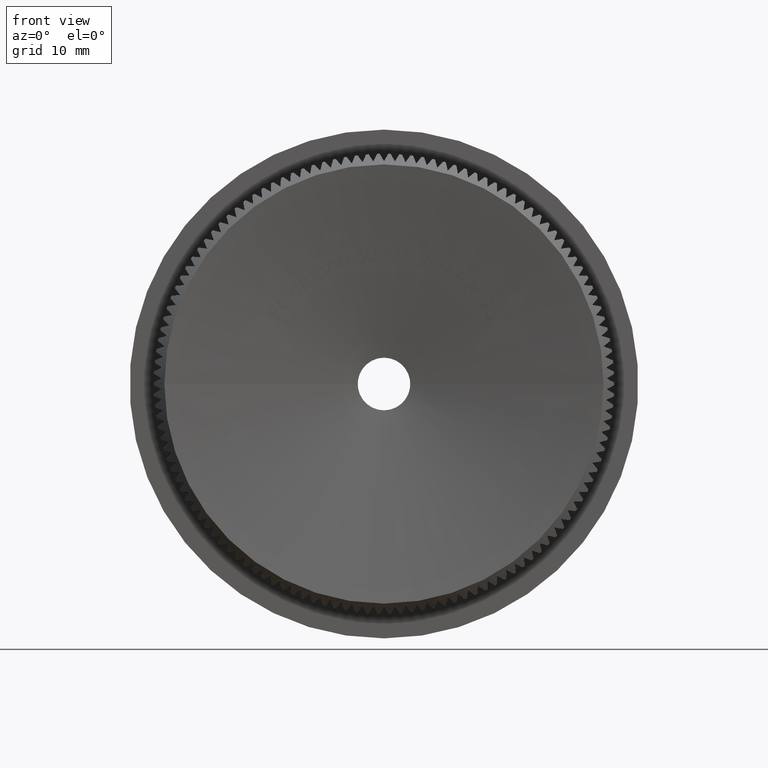
[diagram: clean part render]
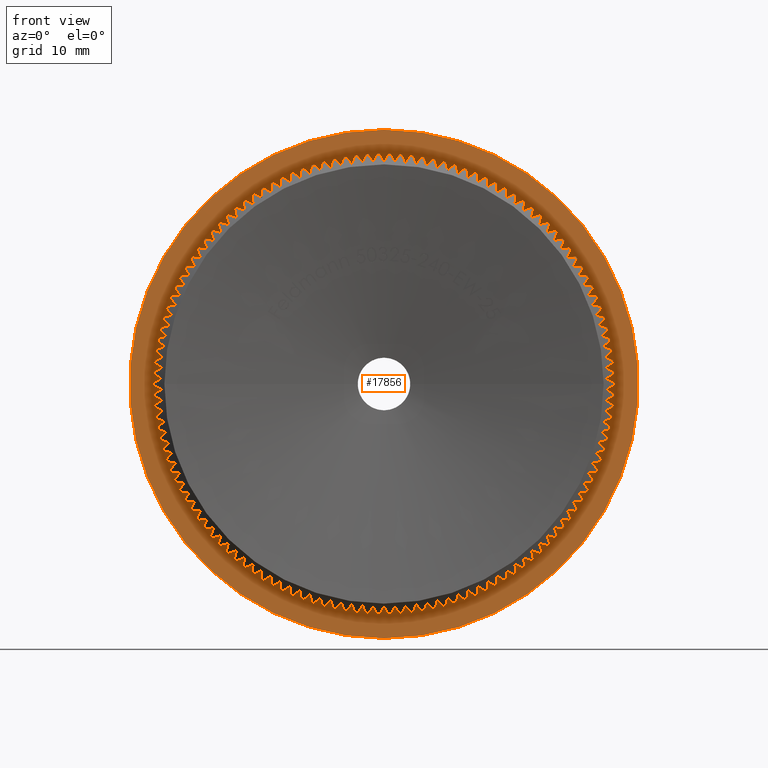
[diagram: same view with one face highlighted and labeled with its STEP entity id]
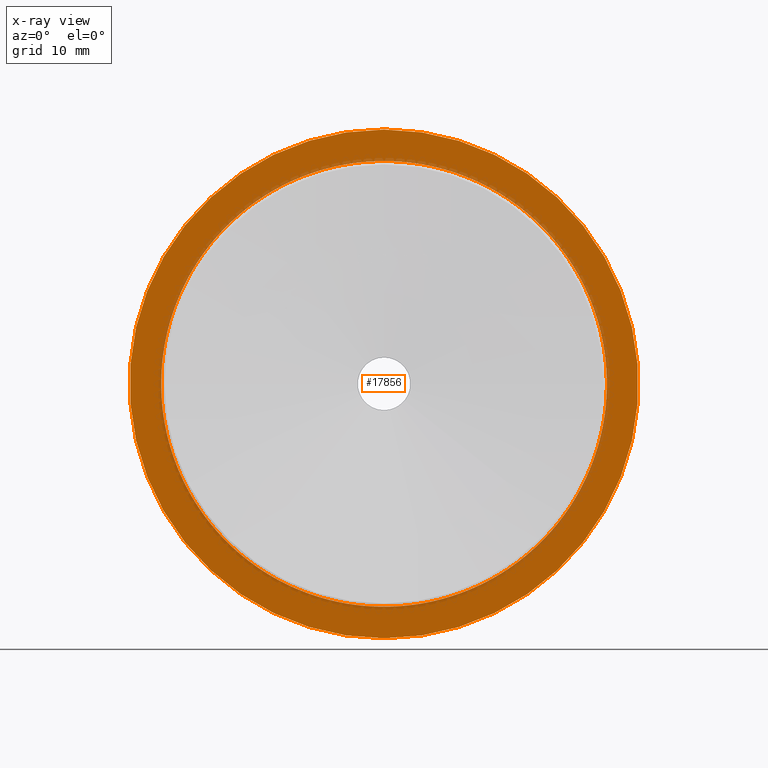
[diagram: x-ray of the same camera — body ghosted, the highlighted face saturated]
A machine part, front view. The second image highlights one B-rep face of the part: STEP entity #17856.
The next image is the same camera in x-ray: the body ghosted, the highlighted face saturated — about 8% of this face is hidden behind the body in this view.
In plain terms, the highlighted planar face has unit normal (0, -1, -0).
Its self-contained STEP definition (entity closure, byte-faithful):
#22 = AXIS2_PLACEMENT_3D ( 'NONE', #17489, #29027, #15130 ) ;
#60 = VERTEX_POINT ( 'NONE', #9445 ) ;
#108 = CARTESIAN_POINT ( 'NONE',  ( 0.0000000000000000000, 8.000000000000001800, 0.0000000000000000000 ) ) ;
#128 = ORIENTED_EDGE ( 'NONE', *, *, #849, .F. ) ;
#133 = CARTESIAN_POINT ( 'NONE',  ( 7.975555901708126800, 7.999999999999998200, -19.58859382545691500 ) ) ;
#163 = CARTESIAN_POINT ( 'NONE',  ( -20.65172881723911800, 8.000000000000008900, 4.563835761639041700 ) ) ;
#244 = ORIENTED_EDGE ( 'NONE', *, *, #8651, .F. ) ;
#249 = DIRECTION ( 'NONE',  ( 0.0000000000000000000, 0.0000000000000000000, -1.000000000000000000 ) ) ;
#302 = CARTESIAN_POINT ( 'NONE',  ( -14.77351537501504500, 8.000000000000005300, 15.13491801973813700 ) ) ;
#335 = AXIS2_PLACEMENT_3D ( 'NONE', #20799, #2137, #6691 ) ;
#342 = ORIENTED_EDGE ( 'NONE', *, *, #18832, .F. ) ;
#348 = CIRCLE ( 'NONE', #29347, 21.15000000000000200 ) ;
#350 = CARTESIAN_POINT ( 'NONE',  ( 0.0000000000000000000, 8.000000000000001800, 0.0000000000000000000 ) ) ;
#447 = DIRECTION ( 'NONE',  ( 0.0000000000000000000, 0.0000000000000000000, -1.000000000000000000 ) ) ;
#475 = VERTEX_POINT ( 'NONE', #2791 ) ;
#503 = VERTEX_POINT ( 'NONE', #18979 ) ;
#523 = CIRCLE ( 'NONE', #28637, 21.15000000000000200 ) ;
#530 = EDGE_CURVE ( 'NONE', #475, #12936, #9661, .T. ) ;
#626 = DIRECTION ( 'NONE',  ( 0.0000000000000000000, 0.0000000000000000000, -1.000000000000000000 ) ) ;
#671 = EDGE_CURVE ( 'NONE', #27882, #30017, #29914, .T. ) ;
#705 = DIRECTION ( 'NONE',  ( -0.0000000000000000000, -1.000000000000000000, -0.0000000000000000000 ) ) ;
#738 = DIRECTION ( 'NONE',  ( -0.0000000000000000000, -1.000000000000000000, -0.0000000000000000000 ) ) ;
#751 = EDGE_CURVE ( 'NONE', #8979, #1743, #25905, .T. ) ;
#766 = CIRCLE ( 'NONE', #8776, 21.15000000000000200 ) ;
#785 = AXIS2_PLACEMENT_3D ( 'NONE', #30129, #25231, #20451 ) ;
#797 = CARTESIAN_POINT ( 'NONE',  ( 0.0000000000000000000, 8.000000000000001800, 0.0000000000000000000 ) ) ;
#815 = CARTESIAN_POINT ( 'NONE',  ( -1.021827976964330400, 7.999999999999998200, -21.12530159750371800 ) ) ;
#849 = EDGE_CURVE ( 'NONE', #15750, #5227, #16310, .T. ) ;
#919 = AXIS2_PLACEMENT_3D ( 'NONE', #12149, #23988, #28823 ) ;
#983 = DIRECTION ( 'NONE',  ( -0.0000000000000000000, -1.000000000000000000, -0.0000000000000000000 ) ) ;
#988 = EDGE_CURVE ( 'NONE', #15364, #20159, #22934, .T. ) ;
#1010 = DIRECTION ( 'NONE',  ( 0.0000000000000000000, 0.0000000000000000000, -1.000000000000000000 ) ) ;
#1019 = EDGE_CURVE ( 'NONE', #27528, #8181, #14842, .T. ) ;
#1021 = ORIENTED_EDGE ( 'NONE', *, *, #19185, .F. ) ;
#1050 = DIRECTION ( 'NONE',  ( -0.0000000000000000000, -1.000000000000000000, -0.0000000000000000000 ) ) ;
#1068 = CIRCLE ( 'NONE', #21862, 21.15000000000000200 ) ;
#1115 = VERTEX_POINT ( 'NONE', #29468 ) ;
#1137 = DIRECTION ( 'NONE',  ( -0.0000000000000000000, -1.000000000000000000, -0.0000000000000000000 ) ) ;
#1202 = AXIS2_PLACEMENT_3D ( 'NONE', #16200, #18553, #1655 ) ;
#1294 = DIRECTION ( 'NONE',  ( 0.0000000000000000000, 0.0000000000000000000, -1.000000000000000000 ) ) ;
#1317 = DIRECTION ( 'NONE',  ( 0.0000000000000000000, 0.0000000000000000000, -1.000000000000000000 ) ) ;
#1319 = VERTEX_POINT ( 'NONE', #9677 ) ;
#1351 = CARTESIAN_POINT ( 'NONE',  ( 0.0000000000000000000, 8.000000000000001800, 0.0000000000000000000 ) ) ;
#1425 = VERTEX_POINT ( 'NONE', #163 ) ;
#1522 = CIRCLE ( 'NONE', #4011, 21.15000000000000200 ) ;
#1549 = CARTESIAN_POINT ( 'NONE',  ( 0.0000000000000000000, 8.000000000000001800, 0.0000000000000000000 ) ) ;
#1606 = ORIENTED_EDGE ( 'NONE', *, *, #671, .F. ) ;
#1611 = AXIS2_PLACEMENT_3D ( 'NONE', #20747, #6639, #8825 ) ;
#1616 = DIRECTION ( 'NONE',  ( 0.0000000000000000000, 0.0000000000000000000, -1.000000000000000000 ) ) ;
#1617 = DIRECTION ( 'NONE',  ( 0.0000000000000000000, 0.0000000000000000000, -1.000000000000000000 ) ) ;
#1646 = ORIENTED_EDGE ( 'NONE', *, *, #29437, .F. ) ;
#1655 = DIRECTION ( 'NONE',  ( 0.0000000000000000000, 0.0000000000000000000, -1.000000000000000000 ) ) ;
#1684 = DIRECTION ( 'NONE',  ( 0.0000000000000000000, 0.0000000000000000000, -1.000000000000000000 ) ) ;
#1743 = VERTEX_POINT ( 'NONE', #17872 ) ;
#1760 = ORIENTED_EDGE ( 'NONE', *, *, #17181, .F. ) ;
#1787 = AXIS2_PLACEMENT_3D ( 'NONE', #24608, #6134, #27288 ) ;
#1816 = DIRECTION ( 'NONE',  ( -0.0000000000000000000, -1.000000000000000000, -0.0000000000000000000 ) ) ;
#1833 = CARTESIAN_POINT ( 'NONE',  ( 0.0000000000000000000, 8.000000000000001800, 0.0000000000000000000 ) ) ;
#1839 = DIRECTION ( 'NONE',  ( 0.0000000000000000000, 0.0000000000000000000, -1.000000000000000000 ) ) ;
#1846 = AXIS2_PLACEMENT_3D ( 'NONE', #2533, #21395, #21297 ) ;
#1873 = DIRECTION ( 'NONE',  ( -0.0000000000000000000, -1.000000000000000000, -0.0000000000000000000 ) ) ;
#1918 = CARTESIAN_POINT ( 'NONE',  ( 16.80531792594601700, 7.999999999999998200, -12.84148704036559600 ) ) ;
#1930 = VERTEX_POINT ( 'NONE', #18389 ) ;
#1945 = CIRCLE ( 'NONE', #10137, 21.15000000000000200 ) ;
#1957 = AXIS2_PLACEMENT_3D ( 'NONE', #17555, #10765, #29393 ) ;
#1992 = CARTESIAN_POINT ( 'NONE',  ( -8.912633429389009300, 8.000000000000005300, 19.18039273198903100 ) ) ;
#2001 = VERTEX_POINT ( 'NONE', #9525 ) ;
#2004 = DIRECTION ( 'NONE',  ( 0.0000000000000000000, 0.0000000000000000000, -1.000000000000000000 ) ) ;
#2007 = EDGE_CURVE ( 'NONE', #8213, #21607, #26976, .T. ) ;
#2066 = DIRECTION ( 'NONE',  ( -0.0000000000000000000, -1.000000000000000000, -0.0000000000000000000 ) ) ;
#2080 = CARTESIAN_POINT ( 'NONE',  ( 0.0000000000000000000, 8.000000000000001800, 0.0000000000000000000 ) ) ;
#2135 = CIRCLE ( 'NONE', #25851, 21.15000000000000200 ) ;
#2137 = DIRECTION ( 'NONE',  ( -0.0000000000000000000, -1.000000000000000000, -0.0000000000000000000 ) ) ;
#2154 = CIRCLE ( 'NONE', #17911, 21.15000000000000200 ) ;
#2195 = ORIENTED_EDGE ( 'NONE', *, *, #28818, .F. ) ;
#2215 = DIRECTION ( 'NONE',  ( 0.0000000000000000000, 0.0000000000000000000, -1.000000000000000000 ) ) ;
#2262 = AXIS2_PLACEMENT_3D ( 'NONE', #27991, #11400, #25716 ) ;
#2334 = CARTESIAN_POINT ( 'NONE',  ( 0.0000000000000000000, 8.000000000000001800, 0.0000000000000000000 ) ) ;
#2336 = ORIENTED_EDGE ( 'NONE', *, *, #27153, .F. ) ;
#2383 = DIRECTION ( 'NONE',  ( -0.0000000000000000000, -1.000000000000000000, -0.0000000000000000000 ) ) ;
#2443 = AXIS2_PLACEMENT_3D ( 'NONE', #28866, #28967, #26514 ) ;
#2450 = CARTESIAN_POINT ( 'NONE',  ( 0.0000000000000000000, 8.000000000000001800, 0.0000000000000000000 ) ) ;
#2456 = EDGE_CURVE ( 'NONE', #2523, #18102, #18430, .T. ) ;
#2479 = VERTEX_POINT ( 'NONE', #19646 ) ;
#2523 = VERTEX_POINT ( 'NONE', #17496 ) ;
#2533 = CARTESIAN_POINT ( 'NONE',  ( 0.0000000000000000000, 8.000000000000001800, 0.0000000000000000000 ) ) ;
#2564 = CARTESIAN_POINT ( 'NONE',  ( 0.0000000000000000000, 8.000000000000001800, 0.0000000000000000000 ) ) ;
#2628 = EDGE_CURVE ( 'NONE', #14799, #8979, #15865, .T. ) ;
#2633 = ORIENTED_EDGE ( 'NONE', *, *, #3388, .F. ) ;
#2654 = CIRCLE ( 'NONE', #26396, 21.15000000000000200 ) ;
#2656 = VERTEX_POINT ( 'NONE', #11118 ) ;
#2663 = DIRECTION ( 'NONE',  ( -0.0000000000000000000, -1.000000000000000000, -0.0000000000000000000 ) ) ;
#2673 = CIRCLE ( 'NONE', #6973, 21.15000000000000200 ) ;
#2690 = VERTEX_POINT ( 'NONE', #25342 ) ;
#2692 = AXIS2_PLACEMENT_3D ( 'NONE', #29547, #15448, #1294 ) ;
#2710 = CARTESIAN_POINT ( 'NONE',  ( 0.0000000000000000000, 8.000000000000001800, 0.0000000000000000000 ) ) ;
#2714 = CIRCLE ( 'NONE', #10901, 21.15000000000000200 ) ;
#2715 = DIRECTION ( 'NONE',  ( -0.0000000000000000000, -1.000000000000000000, -0.0000000000000000000 ) ) ;
#2746 = AXIS2_PLACEMENT_3D ( 'NONE', #797, #19675, #1010 ) ;
#2776 = ORIENTED_EDGE ( 'NONE', *, *, #21606, .F. ) ;
#2791 = CARTESIAN_POINT ( 'NONE',  ( 13.24381692793513900, 7.999999999999988500, 16.49011258843732000 ) ) ;
#2814 = CARTESIAN_POINT ( 'NONE',  ( 0.0000000000000000000, 8.000000000000001800, 0.0000000000000000000 ) ) ;
#2827 = DIRECTION ( 'NONE',  ( -0.0000000000000000000, -1.000000000000000000, -0.0000000000000000000 ) ) ;
#2830 = CARTESIAN_POINT ( 'NONE',  ( -17.96624682782019600, 8.000000000000005300, 11.15959116284466800 ) ) ;
#2895 = EDGE_CURVE ( 'NONE', #6765, #28581, #5530, .T. ) ;
#2899 = VERTEX_POINT ( 'NONE', #16279 ) ;
#2996 = CIRCLE ( 'NONE', #27940, 21.15000000000000200 ) ;
#3141 = ORIENTED_EDGE ( 'NONE', *, *, #1019, .F. ) ;
#3160 = EDGE_CURVE ( 'NONE', #20909, #2001, #5160, .T. ) ;
#3168 = DIRECTION ( 'NONE',  ( -0.0000000000000000000, -1.000000000000000000, -0.0000000000000000000 ) ) ;
#3180 = CARTESIAN_POINT ( 'NONE',  ( 0.0000000000000000000, 8.000000000000001800, 0.0000000000000000000 ) ) ;
#3202 = CARTESIAN_POINT ( 'NONE',  ( -19.39015493094568000, 8.000000000000005300, -8.446560942414548000 ) ) ;
#3246 = CARTESIAN_POINT ( 'NONE',  ( 0.0000000000000000000, 8.000000000000001800, -21.15000000000000200 ) ) ;
#3253 = DIRECTION ( 'NONE',  ( 0.0000000000000000000, 0.0000000000000000000, -1.000000000000000000 ) ) ;
#3288 = ORIENTED_EDGE ( 'NONE', *, *, #5554, .F. ) ;
#3315 = AXIS2_PLACEMENT_3D ( 'NONE', #26899, #10203, #3253 ) ;
#3372 = DIRECTION ( 'NONE',  ( 0.0000000000000000000, 0.0000000000000000000, -1.000000000000000000 ) ) ;
#3388 = EDGE_CURVE ( 'NONE', #3419, #20753, #8839, .T. ) ;
#3405 = ORIENTED_EDGE ( 'NONE', *, *, #21093, .F. ) ;
#3419 = VERTEX_POINT ( 'NONE', #10857 ) ;
#3423 = DIRECTION ( 'NONE',  ( 0.0000000000000000000, 0.0000000000000000000, -1.000000000000000000 ) ) ;
#3462 = CARTESIAN_POINT ( 'NONE',  ( 16.16527748954481000, 7.999999999999998200, -13.63841279936987400 ) ) ;
#3493 = ORIENTED_EDGE ( 'NONE', *, *, #10518, .F. ) ;
#3500 = DIRECTION ( 'NONE',  ( 0.0000000000000000000, 0.0000000000000000000, -1.000000000000000000 ) ) ;
#3545 = CARTESIAN_POINT ( 'NONE',  ( 0.0000000000000000000, 8.000000000000001800, 0.0000000000000000000 ) ) ;
#3568 = CARTESIAN_POINT ( 'NONE',  ( 0.0000000000000000000, 8.000000000000000000, 0.0000000000000000000 ) ) ;
#3599 = EDGE_CURVE ( 'NONE', #27041, #27150, #3663, .T. ) ;
#3663 = CIRCLE ( 'NONE', #4047, 21.15000000000000200 ) ;
#3683 = CARTESIAN_POINT ( 'NONE',  ( 11.59046453055141500, 8.000000000000005300, -17.69134341891620100 ) ) ;
#3701 = VERTEX_POINT ( 'NONE', #21748 ) ;
#3702 = EDGE_CURVE ( 'NONE', #29768, #27882, #22107, .T. ) ;
#3732 = AXIS2_PLACEMENT_3D ( 'NONE', #3545, #10698, #29708 ) ;
#3738 = EDGE_CURVE ( 'NONE', #2899, #21635, #18769, .T. ) ;
#3766 = DIRECTION ( 'NONE',  ( 0.0000000000000000000, 0.0000000000000000000, -1.000000000000000000 ) ) ;
#3841 = EDGE_CURVE ( 'NONE', #10935, #12006, #11426, .T. ) ;
#3861 = DIRECTION ( 'NONE',  ( 0.0000000000000000000, 0.0000000000000000000, -1.000000000000000000 ) ) ;
#3877 = CARTESIAN_POINT ( 'NONE',  ( 0.0000000000000000000, 8.000000000000001800, 0.0000000000000000000 ) ) ;
#3905 = CIRCLE ( 'NONE', #16171, 21.15000000000000200 ) ;
#3932 = CARTESIAN_POINT ( 'NONE',  ( 0.0000000000000000000, 8.000000000000001800, 0.0000000000000000000 ) ) ;
#3953 = AXIS2_PLACEMENT_3D ( 'NONE', #7992, #738, #10068 ) ;
#3975 = ORIENTED_EDGE ( 'NONE', *, *, #24444, .F. ) ;
#3993 = ORIENTED_EDGE ( 'NONE', *, *, #17167, .F. ) ;
#4011 = AXIS2_PLACEMENT_3D ( 'NONE', #350, #16878, #249 ) ;
#4013 = DIRECTION ( 'NONE',  ( -0.0000000000000000000, -1.000000000000000000, -0.0000000000000000000 ) ) ;
#4047 = AXIS2_PLACEMENT_3D ( 'NONE', #5046, #18945, #14229 ) ;
#4086 = VERTEX_POINT ( 'NONE', #23886 ) ;
#4100 = VERTEX_POINT ( 'NONE', #9762 ) ;
#4102 = EDGE_CURVE ( 'NONE', #20753, #21976, #8100, .T. ) ;
#4132 = VERTEX_POINT ( 'NONE', #5612 ) ;
#4217 = VERTEX_POINT ( 'NONE', #26764 ) ;
#4272 = DIRECTION ( 'NONE',  ( 0.0000000000000000000, 0.0000000000000000000, -1.000000000000000000 ) ) ;
#4415 = DIRECTION ( 'NONE',  ( -0.0000000000000000000, -1.000000000000000000, -0.0000000000000000000 ) ) ;
#4447 = CIRCLE ( 'NONE', #6390, 21.15000000000000200 ) ;
#4466 = DIRECTION ( 'NONE',  ( 0.0000000000000000000, 0.0000000000000000000, -1.000000000000000000 ) ) ;
#4495 = DIRECTION ( 'NONE',  ( -0.0000000000000000000, -1.000000000000000000, -0.0000000000000000000 ) ) ;
#4530 = VERTEX_POINT ( 'NONE', #18662 ) ;
#4540 = DIRECTION ( 'NONE',  ( 0.0000000000000000000, 0.0000000000000000000, -1.000000000000000000 ) ) ;
#4547 = DIRECTION ( 'NONE',  ( 0.0000000000000000000, 0.0000000000000000000, -1.000000000000000000 ) ) ;
#4555 = VERTEX_POINT ( 'NONE', #26122 ) ;
#4675 = CARTESIAN_POINT ( 'NONE',  ( -6.047751098132152900, 8.000000000000005300, -20.26689928565890500 ) ) ;
#4700 = DIRECTION ( 'NONE',  ( -0.0000000000000000000, -1.000000000000000000, -0.0000000000000000000 ) ) ;
#4723 = CARTESIAN_POINT ( 'NONE',  ( 0.0000000000000000000, 8.000000000000001800, 0.0000000000000000000 ) ) ;
#4769 = VERTEX_POINT ( 'NONE', #11813 ) ;
#4833 = AXIS2_PLACEMENT_3D ( 'NONE', #11573, #4415, #11775 ) ;
#4843 = CIRCLE ( 'NONE', #5421, 21.15000000000000200 ) ;
#4939 = CIRCLE ( 'NONE', #21183, 21.15000000000000200 ) ;
#4964 = CARTESIAN_POINT ( 'NONE',  ( 3.055943398388747400, 7.999999999999994700, 20.92806034838977800 ) ) ;
#5007 = DIRECTION ( 'NONE',  ( 0.0000000000000000000, 0.0000000000000000000, -1.000000000000000000 ) ) ;
#5024 = AXIS2_PLACEMENT_3D ( 'NONE', #8681, #15681, #13118 ) ;
#5046 = CARTESIAN_POINT ( 'NONE',  ( 0.0000000000000000000, 8.000000000000001800, 0.0000000000000000000 ) ) ;
#5096 = DIRECTION ( 'NONE',  ( 0.0000000000000000000, -1.000000000000000000, -0.0000000000000000000 ) ) ;
#5153 = CIRCLE ( 'NONE', #7219, 21.15000000000000200 ) ;
#5160 = CIRCLE ( 'NONE', #10997, 21.15000000000000200 ) ;
#5174 = ORIENTED_EDGE ( 'NONE', *, *, #15736, .F. ) ;
#5193 = CIRCLE ( 'NONE', #12758, 21.15000000000000200 ) ;
#5227 = VERTEX_POINT ( 'NONE', #2830 ) ;
#5260 = CARTESIAN_POINT ( 'NONE',  ( 0.0000000000000000000, 8.000000000000001800, 0.0000000000000000000 ) ) ;
#5290 = DIRECTION ( 'NONE',  ( -0.0000000000000000000, -1.000000000000000000, -0.0000000000000000000 ) ) ;
#5313 = CARTESIAN_POINT ( 'NONE',  ( -14.77351537501493800, 8.000000000000001800, -15.13491801973824200 ) ) ;
#5325 = CARTESIAN_POINT ( 'NONE',  ( 17.96624682782027100, 7.999999999999998200, -11.15959116284454700 ) ) ;
#5329 = DIRECTION ( 'NONE',  ( -0.0000000000000000000, -1.000000000000000000, -0.0000000000000000000 ) ) ;
#5375 = CARTESIAN_POINT ( 'NONE',  ( 5.061526299681574400, 8.000000000000005300, 20.53541943856106800 ) ) ;
#5404 = CARTESIAN_POINT ( 'NONE',  ( 5.061526299682004300, 7.999999999999998200, -20.53541943856096500 ) ) ;
#5421 = AXIS2_PLACEMENT_3D ( 'NONE', #21707, #7409, #447 ) ;
#5443 = VERTEX_POINT ( 'NONE', #18379 ) ;
#5450 = DIRECTION ( 'NONE',  ( -0.0000000000000000000, -1.000000000000000000, -0.0000000000000000000 ) ) ;
#5462 = DIRECTION ( 'NONE',  ( 0.0000000000000000000, 0.0000000000000000000, -1.000000000000000000 ) ) ;
#5463 = AXIS2_PLACEMENT_3D ( 'NONE', #14398, #19013, #5007 ) ;
#5489 = ORIENTED_EDGE ( 'NONE', *, *, #15270, .T. ) ;
#5509 = DIRECTION ( 'NONE',  ( -0.0000000000000000000, -1.000000000000000000, -0.0000000000000000000 ) ) ;
#5526 = DIRECTION ( 'NONE',  ( 0.0000000000000000000, 0.0000000000000000000, -1.000000000000000000 ) ) ;
#5530 = CIRCLE ( 'NONE', #12971, 21.15000000000000200 ) ;
#5544 = AXIS2_PLACEMENT_3D ( 'NONE', #13237, #6014, #19930 ) ;
#5547 = DIRECTION ( 'NONE',  ( 0.0000000000000000000, 0.0000000000000000000, -1.000000000000000000 ) ) ;
#5554 = EDGE_CURVE ( 'NONE', #1930, #2690, #12476, .T. ) ;
#5561 = EDGE_CURVE ( 'NONE', #1115, #8213, #2154, .T. ) ;
#5600 = VERTEX_POINT ( 'NONE', #19019 ) ;
#5612 = CARTESIAN_POINT ( 'NONE',  ( -17.96624682782011800, 8.000000000000005300, -11.15959116284479100 ) ) ;
#5618 = VERTEX_POINT ( 'NONE', #11851 ) ;
#5659 = DIRECTION ( 'NONE',  ( 0.0000000000000000000, 0.0000000000000000000, -1.000000000000000000 ) ) ;
#5665 = EDGE_CURVE ( 'NONE', #6034, #4217, #11432, .T. ) ;
#5669 = VERTEX_POINT ( 'NONE', #7304 ) ;
#5719 = DIRECTION ( 'NONE',  ( -0.0000000000000000000, -1.000000000000000000, -0.0000000000000000000 ) ) ;
#5721 = CARTESIAN_POINT ( 'NONE',  ( 0.0000000000000000000, 8.000000000000001800, 0.0000000000000000000 ) ) ;
#5724 = VERTEX_POINT ( 'NONE', #9455 ) ;
#5816 = DIRECTION ( 'NONE',  ( 0.0000000000000000000, 0.0000000000000000000, -1.000000000000000000 ) ) ;
#5831 = CARTESIAN_POINT ( 'NONE',  ( -14.02504422179284500, 8.000000000000005300, 15.83100232381876700 ) ) ;
#5835 = AXIS2_PLACEMENT_3D ( 'NONE', #22123, #12355, #26882 ) ;
#5849 = EDGE_CURVE ( 'NONE', #6070, #23914, #13238, .T. ) ;
#5856 = DIRECTION ( 'NONE',  ( 0.0000000000000000000, 0.0000000000000000000, -1.000000000000000000 ) ) ;
#5913 = CARTESIAN_POINT ( 'NONE',  ( 0.0000000000000000000, 8.000000000000001800, 0.0000000000000000000 ) ) ;
#6012 = CIRCLE ( 'NONE', #785, 21.15000000000000200 ) ;
#6014 = DIRECTION ( 'NONE',  ( -0.0000000000000000000, -1.000000000000000000, -0.0000000000000000000 ) ) ;
#6017 = CARTESIAN_POINT ( 'NONE',  ( 0.0000000000000000000, 8.000000000000001800, 0.0000000000000000000 ) ) ;
#6034 = VERTEX_POINT ( 'NONE', #4675 ) ;
#6044 = CIRCLE ( 'NONE', #1957, 21.15000000000000200 ) ;
#6070 = VERTEX_POINT ( 'NONE', #7897 ) ;
#6088 = CARTESIAN_POINT ( 'NONE',  ( 0.0000000000000000000, 8.000000000000001800, 0.0000000000000000000 ) ) ;
#6133 = AXIS2_PLACEMENT_3D ( 'NONE', #29162, #10329, #21846 ) ;
#6134 = DIRECTION ( 'NONE',  ( -0.0000000000000000000, -1.000000000000000000, -0.0000000000000000000 ) ) ;
#6144 = EDGE_CURVE ( 'NONE', #13011, #5443, #17596, .T. ) ;
#6146 = VERTEX_POINT ( 'NONE', #10483 ) ;
#6187 = DIRECTION ( 'NONE',  ( -0.0000000000000000000, -1.000000000000000000, -0.0000000000000000000 ) ) ;
#6226 = AXIS2_PLACEMENT_3D ( 'NONE', #30034, #18295, #3861 ) ;
#6236 = CARTESIAN_POINT ( 'NONE',  ( -19.39015493094574800, 7.999999999999983100, 8.446560942414414800 ) ) ;
#6257 = ORIENTED_EDGE ( 'NONE', *, *, #24129, .F. ) ;
#6263 = DIRECTION ( 'NONE',  ( -0.0000000000000000000, -1.000000000000000000, -0.0000000000000000000 ) ) ;
#6332 = EDGE_CURVE ( 'NONE', #27155, #12869, #12085, .T. ) ;
#6385 = DIRECTION ( 'NONE',  ( -0.0000000000000000000, -1.000000000000000000, -0.0000000000000000000 ) ) ;
#6390 = AXIS2_PLACEMENT_3D ( 'NONE', #17950, #8604, #25096 ) ;
#6405 = CIRCLE ( 'NONE', #22944, 21.15000000000000200 ) ;
#6454 = CARTESIAN_POINT ( 'NONE',  ( 0.0000000000000000000, 8.000000000000001800, 0.0000000000000000000 ) ) ;
#6470 = CARTESIAN_POINT ( 'NONE',  ( 0.0000000000000000000, 8.000000000000001800, 0.0000000000000000000 ) ) ;
#6490 = DIRECTION ( 'NONE',  ( 0.0000000000000000000, 0.0000000000000000000, -1.000000000000000000 ) ) ;
#6510 = CARTESIAN_POINT ( 'NONE',  ( 0.0000000000000000000, 8.000000000000001800, 0.0000000000000000000 ) ) ;
#6561 = VERTEX_POINT ( 'NONE', #14972 ) ;
#6586 = EDGE_CURVE ( 'NONE', #2656, #4769, #24224, .T. ) ;
#6624 = CIRCLE ( 'NONE', #8378, 21.15000000000000200 ) ;
#6634 = ORIENTED_EDGE ( 'NONE', *, *, #16512, .F. ) ;
#6639 = DIRECTION ( 'NONE',  ( -0.0000000000000000000, -1.000000000000000000, -0.0000000000000000000 ) ) ;
#6660 = CARTESIAN_POINT ( 'NONE',  ( 0.0000000000000000000, 8.000000000000001800, 0.0000000000000000000 ) ) ;
#6671 = CARTESIAN_POINT ( 'NONE',  ( 0.0000000000000000000, 8.000000000000001800, 0.0000000000000000000 ) ) ;
#6691 = DIRECTION ( 'NONE',  ( 0.0000000000000000000, 0.0000000000000000000, -1.000000000000000000 ) ) ;
#6765 = VERTEX_POINT ( 'NONE', #8880 ) ;
#6766 = CIRCLE ( 'NONE', #10324, 21.15000000000000200 ) ;
#6798 = EDGE_CURVE ( 'NONE', #16926, #30548, #3905, .T. ) ;
#6801 = ORIENTED_EDGE ( 'NONE', *, *, #29747, .F. ) ;
#6824 = AXIS2_PLACEMENT_3D ( 'NONE', #17408, #24115, #8039 ) ;
#6836 = EDGE_CURVE ( 'NONE', #19743, #26220, #23852, .T. ) ;
#6847 = ORIENTED_EDGE ( 'NONE', *, *, #25398, .F. ) ;
#6859 = CARTESIAN_POINT ( 'NONE',  ( -20.11484531964252300, 7.999999999999988500, 6.535709431030082500 ) ) ;
#6861 = ORIENTED_EDGE ( 'NONE', *, *, #27088, .F. ) ;
#6873 = CARTESIAN_POINT ( 'NONE',  ( -7.019851093668256300, 7.999999999999998200, -19.95104485040131300 ) ) ;
#6943 = FACE_BOUND ( 'NONE', #14157, .T. ) ;
#6969 = CARTESIAN_POINT ( 'NONE',  ( 10.72220090815721100, 8.000000000000001800, 18.23065845451317900 ) ) ;
#6973 = AXIS2_PLACEMENT_3D ( 'NONE', #19874, #12783, #26914 ) ;
#7063 = DIRECTION ( 'NONE',  ( -0.0000000000000000000, -1.000000000000000000, -0.0000000000000000000 ) ) ;
#7092 = CARTESIAN_POINT ( 'NONE',  ( 0.0000000000000000000, 8.000000000000001800, 0.0000000000000000000 ) ) ;
#7106 = VERTEX_POINT ( 'NONE', #15635 ) ;
#7146 = ORIENTED_EDGE ( 'NONE', *, *, #27812, .F. ) ;
#7154 = DIRECTION ( 'NONE',  ( -0.0000000000000000000, -1.000000000000000000, -0.0000000000000000000 ) ) ;
#7161 = EDGE_CURVE ( 'NONE', #28581, #12944, #7990, .T. ) ;
#7189 = CARTESIAN_POINT ( 'NONE',  ( -21.09444211597503500, 8.000000000000001800, -1.531996023421352100 ) ) ;
#7191 = CIRCLE ( 'NONE', #10504, 21.15000000000000200 ) ;
#7219 = AXIS2_PLACEMENT_3D ( 'NONE', #15645, #22665, #13085 ) ;
#7288 = CARTESIAN_POINT ( 'NONE',  ( 0.0000000000000000000, 8.000000000000001800, 0.0000000000000000000 ) ) ;
#7297 = AXIS2_PLACEMENT_3D ( 'NONE', #2334, #4700, #13704 ) ;
#7304 = CARTESIAN_POINT ( 'NONE',  ( -18.95942972380416000, 8.000000000000005300, 9.373501189423908600 ) ) ;
#7322 = ORIENTED_EDGE ( 'NONE', *, *, #14977, .F. ) ;
#7354 = VERTEX_POINT ( 'NONE', #133 ) ;
#7366 = CARTESIAN_POINT ( 'NONE',  ( 12.43165808598560000, 8.000000000000014200, 17.11070943103029100 ) ) ;
#7383 = EDGE_CURVE ( 'NONE', #12936, #12622, #23822, .T. ) ;
#7409 = DIRECTION ( 'NONE',  ( -0.0000000000000000000, -1.000000000000000000, -0.0000000000000000000 ) ) ;
#7438 = AXIS2_PLACEMENT_3D ( 'NONE', #25174, #15568, #1839 ) ;
#7454 = ORIENTED_EDGE ( 'NONE', *, *, #10612, .F. ) ;
#7483 = DIRECTION ( 'NONE',  ( 0.0000000000000000000, 0.0000000000000000000, -1.000000000000000000 ) ) ;
#7501 = CARTESIAN_POINT ( 'NONE',  ( 0.0000000000000000000, 8.000000000000001800, 0.0000000000000000000 ) ) ;
#7523 = EDGE_CURVE ( 'NONE', #12944, #26505, #23464, .T. ) ;
#7527 = CIRCLE ( 'NONE', #24952, 21.15000000000000200 ) ;
#7560 = ORIENTED_EDGE ( 'NONE', *, *, #20364, .F. ) ;
#7577 = VERTEX_POINT ( 'NONE', #8392 ) ;
#7590 = ORIENTED_EDGE ( 'NONE', *, *, #2007, .F. ) ;
#7620 = CARTESIAN_POINT ( 'NONE',  ( 0.0000000000000000000, 8.000000000000001800, 0.0000000000000000000 ) ) ;
#7680 = DIRECTION ( 'NONE',  ( -0.0000000000000000000, -1.000000000000000000, -0.0000000000000000000 ) ) ;
#7683 = ORIENTED_EDGE ( 'NONE', *, *, #23214, .F. ) ;
#7713 = CIRCLE ( 'NONE', #24817, 21.15000000000000200 ) ;
#7716 = CARTESIAN_POINT ( 'NONE',  ( -20.84810661170440600, 8.000000000000001800, -3.560751424489948300 ) ) ;
#7739 = CARTESIAN_POINT ( 'NONE',  ( 14.02504422179295700, 7.999999999999998200, -15.83100232381866900 ) ) ;
#7790 = DIRECTION ( 'NONE',  ( 0.0000000000000000000, 0.0000000000000000000, -1.000000000000000000 ) ) ;
#7812 = VERTEX_POINT ( 'NONE', #3246 ) ;
#7851 = CIRCLE ( 'NONE', #10130, 21.15000000000000200 ) ;
#7856 = ORIENTED_EDGE ( 'NONE', *, *, #17888, .F. ) ;
#7897 = CARTESIAN_POINT ( 'NONE',  ( -10.72220090815745900, 7.999999999999998200, 18.23065845451303000 ) ) ;
#7978 = CIRCLE ( 'NONE', #9311, 21.15000000000000200 ) ;
#7990 = CIRCLE ( 'NONE', #26075, 21.15000000000000200 ) ;
#7992 = CARTESIAN_POINT ( 'NONE',  ( 0.0000000000000000000, 8.000000000000001800, 0.0000000000000000000 ) ) ;
#7998 = ORIENTED_EDGE ( 'NONE', *, *, #21737, .F. ) ;
#8006 = CIRCLE ( 'NONE', #2746, 21.15000000000000200 ) ;
#8021 = AXIS2_PLACEMENT_3D ( 'NONE', #30079, #15978, #25282 ) ;
#8039 = DIRECTION ( 'NONE',  ( 0.0000000000000000000, 0.0000000000000000000, -1.000000000000000000 ) ) ;
#8059 = ORIENTED_EDGE ( 'NONE', *, *, #16637, .F. ) ;
#8071 = EDGE_CURVE ( 'NONE', #19073, #10640, #22690, .T. ) ;
#8099 = DIRECTION ( 'NONE',  ( -0.0000000000000000000, -1.000000000000000000, -0.0000000000000000000 ) ) ;
#8100 = CIRCLE ( 'NONE', #5463, 21.15000000000000200 ) ;
#8144 = ORIENTED_EDGE ( 'NONE', *, *, #13849, .F. ) ;
#8181 = VERTEX_POINT ( 'NONE', #13374 ) ;
#8213 = VERTEX_POINT ( 'NONE', #13275 ) ;
#8299 = ORIENTED_EDGE ( 'NONE', *, *, #9834, .F. ) ;
#8329 = EDGE_CURVE ( 'NONE', #21533, #10748, #523, .T. ) ;
#8356 = DIRECTION ( 'NONE',  ( 0.0000000000000000000, 0.0000000000000000000, -1.000000000000000000 ) ) ;
#8378 = AXIS2_PLACEMENT_3D ( 'NONE', #7501, #2827, #14293 ) ;
#8392 = CARTESIAN_POINT ( 'NONE',  ( -19.77559353279649200, 8.000000000000008900, -7.499893360949712900 ) ) ;
#8402 = DIRECTION ( 'NONE',  ( -0.0000000000000000000, -1.000000000000000000, -0.0000000000000000000 ) ) ;
#8409 = AXIS2_PLACEMENT_3D ( 'NONE', #7620, #24106, #12669 ) ;
#8421 = CARTESIAN_POINT ( 'NONE',  ( -16.16527748954462500, 7.999999999999998200, -13.63841279937009300 ) ) ;
#8436 = CIRCLE ( 'NONE', #16174, 21.15000000000000200 ) ;
#8446 = CIRCLE ( 'NONE', #28738, 21.15000000000000200 ) ;
#8485 = CARTESIAN_POINT ( 'NONE',  ( 0.0000000000000000000, 8.000000000000001800, 0.0000000000000000000 ) ) ;
#8540 = CIRCLE ( 'NONE', #22777, 21.15000000000000200 ) ;
#8549 = ORIENTED_EDGE ( 'NONE', *, *, #28294, .F. ) ;
#8568 = CIRCLE ( 'NONE', #14868, 21.15000000000000200 ) ;
#8598 = DIRECTION ( 'NONE',  ( 0.0000000000000000000, 0.0000000000000000000, -1.000000000000000000 ) ) ;
#8604 = DIRECTION ( 'NONE',  ( -0.0000000000000000000, -1.000000000000000000, -0.0000000000000000000 ) ) ;
#8612 = EDGE_CURVE ( 'NONE', #14425, #15364, #12378, .T. ) ;
#8635 = CIRCLE ( 'NONE', #1787, 21.15000000000000200 ) ;
#8636 = DIRECTION ( 'NONE',  ( 0.0000000000000000000, 0.0000000000000000000, -1.000000000000000000 ) ) ;
#8651 = EDGE_CURVE ( 'NONE', #8813, #6561, #9800, .T. ) ;
#8677 = VERTEX_POINT ( 'NONE', #11389 ) ;
#8681 = CARTESIAN_POINT ( 'NONE',  ( 0.0000000000000000000, 8.000000000000001800, 0.0000000000000000000 ) ) ;
#8684 = AXIS2_PLACEMENT_3D ( 'NONE', #1833, #983, #14696 ) ;
#8688 = CARTESIAN_POINT ( 'NONE',  ( -16.80531792594584300, 8.000000000000001800, -12.84148704036582300 ) ) ;
#8776 = AXIS2_PLACEMENT_3D ( 'NONE', #16018, #1873, #1684 ) ;
#8813 = VERTEX_POINT ( 'NONE', #12497 ) ;
#8825 = DIRECTION ( 'NONE',  ( 0.0000000000000000000, 0.0000000000000000000, -1.000000000000000000 ) ) ;
#8839 = CIRCLE ( 'NONE', #23631, 21.15000000000000200 ) ;
#8880 = CARTESIAN_POINT ( 'NONE',  ( -15.48748229854283700, 8.000000000000005300, -14.40348541334084100 ) ) ;
#8921 = CIRCLE ( 'NONE', #23957, 21.15000000000000200 ) ;
#8941 = DIRECTION ( 'NONE',  ( 0.0000000000000000000, 0.0000000000000000000, -1.000000000000000000 ) ) ;
#8942 = DIRECTION ( 'NONE',  ( -0.0000000000000000000, -1.000000000000000000, -0.0000000000000000000 ) ) ;
#8961 = DIRECTION ( 'NONE',  ( 0.0000000000000000000, 0.0000000000000000000, -1.000000000000000000 ) ) ;
#8979 = VERTEX_POINT ( 'NONE', #27733 ) ;
#9009 = CARTESIAN_POINT ( 'NONE',  ( 0.0000000000000000000, 8.000000000000001800, 0.0000000000000000000 ) ) ;
#9061 = AXIS2_PLACEMENT_3D ( 'NONE', #13969, #18580, #30527 ) ;
#9125 = VERTEX_POINT ( 'NONE', #16173 ) ;
#9128 = CARTESIAN_POINT ( 'NONE',  ( 20.11484531964242700, 8.000000000000001800, 6.535709431030367600 ) ) ;
#9145 = DIRECTION ( 'NONE',  ( -0.0000000000000000000, -1.000000000000000000, -0.0000000000000000000 ) ) ;
#9147 = CARTESIAN_POINT ( 'NONE',  ( 20.99579268717386800, 8.000000000000005300, -2.549350787399869800 ) ) ;
#9150 = AXIS2_PLACEMENT_3D ( 'NONE', #26694, #24731, #5856 ) ;
#9177 = CARTESIAN_POINT ( 'NONE',  ( 0.0000000000000000000, 8.000000000000001800, 0.0000000000000000000 ) ) ;
#9269 = CARTESIAN_POINT ( 'NONE',  ( 0.0000000000000000000, 8.000000000000001800, 0.0000000000000000000 ) ) ;
#9270 = ORIENTED_EDGE ( 'NONE', *, *, #10478, .F. ) ;
#9271 = DIRECTION ( 'NONE',  ( -0.0000000000000000000, -1.000000000000000000, -0.0000000000000000000 ) ) ;
#9311 = AXIS2_PLACEMENT_3D ( 'NONE', #19778, #21956, #14853 ) ;
#9365 = DIRECTION ( 'NONE',  ( -0.0000000000000000000, -1.000000000000000000, -0.0000000000000000000 ) ) ;
#9410 = ORIENTED_EDGE ( 'NONE', *, *, #29494, .F. ) ;
#9445 = CARTESIAN_POINT ( 'NONE',  ( 14.02504422179263200, 8.000000000000005300, 15.83100232381895400 ) ) ;
#9446 = AXIS2_PLACEMENT_3D ( 'NONE', #26443, #5096, #28415 ) ;
#9455 = CARTESIAN_POINT ( 'NONE',  ( -7.975555901707864800, 7.999999999999991100, -19.58859382545702800 ) ) ;
#9475 = ORIENTED_EDGE ( 'NONE', *, *, #12943, .F. ) ;
#9480 = CARTESIAN_POINT ( 'NONE',  ( 0.0000000000000000000, 8.000000000000000000, 0.0000000000000000000 ) ) ;
#9487 = ORIENTED_EDGE ( 'NONE', *, *, #26791, .F. ) ;
#9525 = CARTESIAN_POINT ( 'NONE',  ( -5.061526299681858600, 8.000000000000005300, 20.53541943856100000 ) ) ;
#9540 = AXIS2_PLACEMENT_3D ( 'NONE', #10678, #15503, #15306 ) ;
#9573 = CIRCLE ( 'NONE', #8021, 21.15000000000000200 ) ;
#9661 = CIRCLE ( 'NONE', #27159, 21.15000000000000200 ) ;
#9677 = CARTESIAN_POINT ( 'NONE',  ( -21.14382449779608600, 7.999999999999998200, -0.5110632117442733800 ) ) ;
#9683 = EDGE_CURVE ( 'NONE', #26979, #3419, #4939, .T. ) ;
#9741 = DIRECTION ( 'NONE',  ( 0.0000000000000000000, 0.0000000000000000000, -1.000000000000000000 ) ) ;
#9762 = CARTESIAN_POINT ( 'NONE',  ( -7.975555901707995300, 8.000000000000001800, 19.58859382545696800 ) ) ;
#9769 = AXIS2_PLACEMENT_3D ( 'NONE', #22493, #6187, #3500 ) ;
#9800 = CIRCLE ( 'NONE', #19346, 21.15000000000000200 ) ;
#9834 = EDGE_CURVE ( 'NONE', #60, #475, #27820, .T. ) ;
#9864 = DIRECTION ( 'NONE',  ( -0.0000000000000000000, -1.000000000000000000, -0.0000000000000000000 ) ) ;
#9872 = EDGE_CURVE ( 'NONE', #28213, #24833, #1945, .T. ) ;
#9889 = VERTEX_POINT ( 'NONE', #22000 ) ;
#9962 = EDGE_CURVE ( 'NONE', #7354, #28700, #6766, .T. ) ;
#9970 = DIRECTION ( 'NONE',  ( 0.0000000000000000000, 0.0000000000000000000, -1.000000000000000000 ) ) ;
#9977 = CARTESIAN_POINT ( 'NONE',  ( 20.40711795321616900, 8.000000000000005300, -5.556261048899915300 ) ) ;
#9983 = CIRCLE ( 'NONE', #29173, 21.15000000000000200 ) ;
#10004 = EDGE_CURVE ( 'NONE', #5443, #27528, #23761, .T. ) ;
#10021 = EDGE_CURVE ( 'NONE', #5669, #10935, #21527, .T. ) ;
#10035 = CARTESIAN_POINT ( 'NONE',  ( -3.055943398388893500, 7.999999999999994700, -20.92806034838975600 ) ) ;
#10045 = DIRECTION ( 'NONE',  ( -0.0000000000000000000, -1.000000000000000000, -0.0000000000000000000 ) ) ;
#10057 = CARTESIAN_POINT ( 'NONE',  ( 20.65172881723915300, 8.000000000000001800, -4.563835761638896900 ) ) ;
#10068 = DIRECTION ( 'NONE',  ( 0.0000000000000000000, 0.0000000000000000000, -1.000000000000000000 ) ) ;
#10110 = EDGE_CURVE ( 'NONE', #26220, #21471, #7527, .T. ) ;
#10127 = DIRECTION ( 'NONE',  ( -0.0000000000000000000, -1.000000000000000000, -0.0000000000000000000 ) ) ;
#10130 = AXIS2_PLACEMENT_3D ( 'NONE', #22798, #18249, #13323 ) ;
#10137 = AXIS2_PLACEMENT_3D ( 'NONE', #29113, #8099, #17160 ) ;
#10149 = EDGE_CURVE ( 'NONE', #16550, #5669, #15242, .T. ) ;
#10189 = CARTESIAN_POINT ( 'NONE',  ( 21.09444211597502400, 8.000000000000001800, 1.531996023421499300 ) ) ;
#10200 = ORIENTED_EDGE ( 'NONE', *, *, #6836, .F. ) ;
#10203 = DIRECTION ( 'NONE',  ( -0.0000000000000000000, -1.000000000000000000, -0.0000000000000000000 ) ) ;
#10324 = AXIS2_PLACEMENT_3D ( 'NONE', #1351, #22515, #10988 ) ;
#10327 = AXIS2_PLACEMENT_3D ( 'NONE', #30332, #16134, #21169 ) ;
#10329 = DIRECTION ( 'NONE',  ( -0.0000000000000000000, -1.000000000000000000, -0.0000000000000000000 ) ) ;
#10478 = EDGE_CURVE ( 'NONE', #14135, #12094, #2673, .T. ) ;
#10483 = CARTESIAN_POINT ( 'NONE',  ( 16.16527748954453600, 8.000000000000005300, 13.63841279937019700 ) ) ;
#10485 = VERTEX_POINT ( 'NONE', #15350 ) ;
#10504 = AXIS2_PLACEMENT_3D ( 'NONE', #6454, #13882, #20855 ) ;
#10518 = EDGE_CURVE ( 'NONE', #28655, #17935, #17818, .T. ) ;
#10582 = CARTESIAN_POINT ( 'NONE',  ( 0.0000000000000000000, 8.000000000000001800, 0.0000000000000000000 ) ) ;
#10612 = EDGE_CURVE ( 'NONE', #10748, #1115, #29607, .T. ) ;
#10625 = DIRECTION ( 'NONE',  ( -0.0000000000000000000, -1.000000000000000000, -0.0000000000000000000 ) ) ;
#10640 = VERTEX_POINT ( 'NONE', #20893 ) ;
#10648 = EDGE_CURVE ( 'NONE', #30548, #20909, #11583, .T. ) ;
#10678 = CARTESIAN_POINT ( 'NONE',  ( 0.0000000000000000000, 8.000000000000001800, 0.0000000000000000000 ) ) ;
#10698 = DIRECTION ( 'NONE',  ( -0.0000000000000000000, -1.000000000000000000, -0.0000000000000000000 ) ) ;
#10748 = VERTEX_POINT ( 'NONE', #5325 ) ;
#10765 = DIRECTION ( 'NONE',  ( -0.0000000000000000000, -1.000000000000000000, -0.0000000000000000000 ) ) ;
#10792 = EDGE_CURVE ( 'NONE', #16264, #4530, #13413, .T. ) ;
#10818 = CIRCLE ( 'NONE', #15103, 21.15000000000000200 ) ;
#10829 = CARTESIAN_POINT ( 'NONE',  ( 0.0000000000000000000, 8.000000000000001800, 0.0000000000000000000 ) ) ;
#10857 = CARTESIAN_POINT ( 'NONE',  ( 9.828895088725468900, 8.000000000000001800, 18.72739494256551800 ) ) ;
#10901 = AXIS2_PLACEMENT_3D ( 'NONE', #5260, #9271, #11649 ) ;
#10928 = CARTESIAN_POINT ( 'NONE',  ( -11.59046453055129300, 8.000000000000008900, 17.69134341891628300 ) ) ;
#10935 = VERTEX_POINT ( 'NONE', #6236 ) ;
#10957 = CIRCLE ( 'NONE', #19306, 21.15000000000000200 ) ;
#10960 = DIRECTION ( 'NONE',  ( 0.0000000000000000000, 0.0000000000000000000, -1.000000000000000000 ) ) ;
#10962 = CARTESIAN_POINT ( 'NONE',  ( 0.0000000000000000000, 8.000000000000001800, 0.0000000000000000000 ) ) ;
#10978 = CARTESIAN_POINT ( 'NONE',  ( 20.84810661170438100, 8.000000000000001800, 3.560751424490094000 ) ) ;
#10988 = DIRECTION ( 'NONE',  ( 0.0000000000000000000, 0.0000000000000000000, -1.000000000000000000 ) ) ;
#10997 = AXIS2_PLACEMENT_3D ( 'NONE', #17343, #10045, #14980 ) ;
#11070 = DIRECTION ( 'NONE',  ( -0.0000000000000000000, -1.000000000000000000, -0.0000000000000000000 ) ) ;
#11110 = CIRCLE ( 'NONE', #16731, 24.14999999999999900 ) ;
#11118 = CARTESIAN_POINT ( 'NONE',  ( 7.019851093668118700, 7.999999999999991100, 19.95104485040136700 ) ) ;
#11138 = CARTESIAN_POINT ( 'NONE',  ( 0.0000000000000000000, 8.000000000000001800, 0.0000000000000000000 ) ) ;
#11195 = DIRECTION ( 'NONE',  ( -0.0000000000000000000, -1.000000000000000000, -0.0000000000000000000 ) ) ;
#11227 = CIRCLE ( 'NONE', #27689, 21.15000000000000200 ) ;
#11245 = CARTESIAN_POINT ( 'NONE',  ( 0.0000000000000000000, 8.000000000000001800, 0.0000000000000000000 ) ) ;
#11283 = ORIENTED_EDGE ( 'NONE', *, *, #25506, .F. ) ;
#11290 = DIRECTION ( 'NONE',  ( 0.0000000000000000000, 0.0000000000000000000, -1.000000000000000000 ) ) ;
#11380 = CARTESIAN_POINT ( 'NONE',  ( 19.39015493094562400, 8.000000000000001800, 8.446560942414686600 ) ) ;
#11389 = CARTESIAN_POINT ( 'NONE',  ( 21.09444211597505300, 8.000000000000005300, -1.531996023421057500 ) ) ;
#11400 = DIRECTION ( 'NONE',  ( -0.0000000000000000000, -1.000000000000000000, -0.0000000000000000000 ) ) ;
#11426 = CIRCLE ( 'NONE', #2692, 21.15000000000000200 ) ;
#11432 = CIRCLE ( 'NONE', #25846, 21.15000000000000200 ) ;
#11493 = DIRECTION ( 'NONE',  ( 0.0000000000000000000, 0.0000000000000000000, -1.000000000000000000 ) ) ;
#11528 = DIRECTION ( 'NONE',  ( -0.0000000000000000000, -1.000000000000000000, -0.0000000000000000000 ) ) ;
#11558 = CARTESIAN_POINT ( 'NONE',  ( 0.0000000000000000000, 8.000000000000001800, 0.0000000000000000000 ) ) ;
#11561 = AXIS2_PLACEMENT_3D ( 'NONE', #14898, #12425, #26555 ) ;
#11573 = CARTESIAN_POINT ( 'NONE',  ( 0.0000000000000000000, 8.000000000000001800, 0.0000000000000000000 ) ) ;
#11583 = CIRCLE ( 'NONE', #14876, 21.15000000000000200 ) ;
#11615 = ORIENTED_EDGE ( 'NONE', *, *, #5561, .F. ) ;
#11649 = DIRECTION ( 'NONE',  ( 0.0000000000000000000, 0.0000000000000000000, -1.000000000000000000 ) ) ;
#11672 = AXIS2_PLACEMENT_3D ( 'NONE', #5913, #1050, #3423 ) ;
#11675 = AXIS2_PLACEMENT_3D ( 'NONE', #15930, #23358, #4466 ) ;
#11696 = CARTESIAN_POINT ( 'NONE',  ( 0.0000000000000000000, 8.000000000000001800, 0.0000000000000000000 ) ) ;
#11708 = VERTEX_POINT ( 'NONE', #5831 ) ;
#11754 = ORIENTED_EDGE ( 'NONE', *, *, #13304, .F. ) ;
#11757 = CARTESIAN_POINT ( 'NONE',  ( 20.40711795321605800, 7.999999999999994700, 5.556261048900343400 ) ) ;
#11775 = DIRECTION ( 'NONE',  ( 0.0000000000000000000, 0.0000000000000000000, -1.000000000000000000 ) ) ;
#11783 = DIRECTION ( 'NONE',  ( 0.0000000000000000000, 0.0000000000000000000, -1.000000000000000000 ) ) ;
#11813 = CARTESIAN_POINT ( 'NONE',  ( 6.047751098132011700, 8.000000000000005300, 20.26689928565894400 ) ) ;
#11832 = DIRECTION ( 'NONE',  ( 0.0000000000000000000, 0.0000000000000000000, -1.000000000000000000 ) ) ;
#11834 = CARTESIAN_POINT ( 'NONE',  ( -11.59046453055116800, 7.999999999999998200, -17.69134341891636500 ) ) ;
#11851 = CARTESIAN_POINT ( 'NONE',  ( -18.95942972380409600, 8.000000000000001800, -9.373501189424038300 ) ) ;
#11904 = DIRECTION ( 'NONE',  ( 0.0000000000000000000, 0.0000000000000000000, -1.000000000000000000 ) ) ;
#11973 = EDGE_CURVE ( 'NONE', #24769, #19908, #2996, .T. ) ;
#11979 = DIRECTION ( 'NONE',  ( 0.0000000000000000000, 0.0000000000000000000, -1.000000000000000000 ) ) ;
#12006 = VERTEX_POINT ( 'NONE', #27054 ) ;
#12085 = CIRCLE ( 'NONE', #25075, 21.15000000000000200 ) ;
#12094 = VERTEX_POINT ( 'NONE', #815 ) ;
#12141 = CARTESIAN_POINT ( 'NONE',  ( 8.912633429389140700, 8.000000000000001800, -19.18039273198897000 ) ) ;
#12149 = CARTESIAN_POINT ( 'NONE',  ( 0.0000000000000000000, 8.000000000000001800, 0.0000000000000000000 ) ) ;
#12187 = EDGE_CURVE ( 'NONE', #21976, #2656, #21825, .T. ) ;
#12202 = CARTESIAN_POINT ( 'NONE',  ( -20.40711795321613300, 7.999999999999998200, 5.556261048900053000 ) ) ;
#12323 = PLANE ( 'NONE',  #9446 ) ;
#12335 = DIRECTION ( 'NONE',  ( 0.0000000000000000000, 0.0000000000000000000, -1.000000000000000000 ) ) ;
#12351 = AXIS2_PLACEMENT_3D ( 'NONE', #18855, #30499, #16412 ) ;
#12355 = DIRECTION ( 'NONE',  ( -0.0000000000000000000, -1.000000000000000000, -0.0000000000000000000 ) ) ;
#12378 = CIRCLE ( 'NONE', #14630, 21.15000000000000200 ) ;
#12405 = EDGE_CURVE ( 'NONE', #7106, #19743, #4843, .T. ) ;
#12408 = EDGE_CURVE ( 'NONE', #8181, #30373, #1522, .T. ) ;
#12418 = CARTESIAN_POINT ( 'NONE',  ( -3.055943398389038300, 7.999999999999994700, 20.92806034838973500 ) ) ;
#12421 = ORIENTED_EDGE ( 'NONE', *, *, #13404, .F. ) ;
#12425 = DIRECTION ( 'NONE',  ( -0.0000000000000000000, -1.000000000000000000, -0.0000000000000000000 ) ) ;
#12431 = DIRECTION ( 'NONE',  ( 0.0000000000000000000, 0.0000000000000000000, -1.000000000000000000 ) ) ;
#12455 = CARTESIAN_POINT ( 'NONE',  ( 14.77351537501514900, 8.000000000000005300, -15.13491801973803200 ) ) ;
#12464 = VERTEX_POINT ( 'NONE', #21810 ) ;
#12476 = CIRCLE ( 'NONE', #14775, 21.15000000000000200 ) ;
#12480 = AXIS2_PLACEMENT_3D ( 'NONE', #19430, #5329, #21824 ) ;
#12497 = CARTESIAN_POINT ( 'NONE',  ( 18.95942972380402800, 7.999999999999998200, 9.373501189424178600 ) ) ;
#12525 = DIRECTION ( 'NONE',  ( -0.0000000000000000000, -1.000000000000000000, -0.0000000000000000000 ) ) ;
#12622 = VERTEX_POINT ( 'NONE', #13050 ) ;
#12629 = ORIENTED_EDGE ( 'NONE', *, *, #28402, .F. ) ;
#12669 = DIRECTION ( 'NONE',  ( 0.0000000000000000000, 0.0000000000000000000, -1.000000000000000000 ) ) ;
#12680 = EDGE_CURVE ( 'NONE', #6561, #14799, #766, .T. ) ;
#12682 = ORIENTED_EDGE ( 'NONE', *, *, #11973, .F. ) ;
#12702 = CARTESIAN_POINT ( 'NONE',  ( 0.0000000000000000000, 8.000000000000001800, 0.0000000000000000000 ) ) ;
#12718 = AXIS2_PLACEMENT_3D ( 'NONE', #3568, #15737, #20262 ) ;
#12742 = DIRECTION ( 'NONE',  ( -0.0000000000000000000, -1.000000000000000000, -0.0000000000000000000 ) ) ;
#12758 = AXIS2_PLACEMENT_3D ( 'NONE', #4723, #23609, #25883 ) ;
#12783 = DIRECTION ( 'NONE',  ( -0.0000000000000000000, -1.000000000000000000, -0.0000000000000000000 ) ) ;
#12794 = AXIS2_PLACEMENT_3D ( 'NONE', #21946, #5450, #5547 ) ;
#12842 = AXIS2_PLACEMENT_3D ( 'NONE', #18259, #22712, #8598 ) ;
#12843 = CIRCLE ( 'NONE', #13202, 21.15000000000000200 ) ;
#12869 = VERTEX_POINT ( 'NONE', #26230 ) ;
#12884 = DIRECTION ( 'NONE',  ( 0.0000000000000000000, 0.0000000000000000000, -1.000000000000000000 ) ) ;
#12912 = DIRECTION ( 'NONE',  ( 0.0000000000000000000, 0.0000000000000000000, -1.000000000000000000 ) ) ;
#12913 = DIRECTION ( 'NONE',  ( -0.0000000000000000000, -1.000000000000000000, -0.0000000000000000000 ) ) ;
#12933 = CIRCLE ( 'NONE', #11561, 21.15000000000000200 ) ;
#12936 = VERTEX_POINT ( 'NONE', #7366 ) ;
#12939 = EDGE_CURVE ( 'NONE', #4530, #5600, #20362, .T. ) ;
#12943 = EDGE_CURVE ( 'NONE', #4769, #13011, #10818, .T. ) ;
#12944 = VERTEX_POINT ( 'NONE', #19584 ) ;
#12953 = ORIENTED_EDGE ( 'NONE', *, *, #2456, .F. ) ;
#12971 = AXIS2_PLACEMENT_3D ( 'NONE', #14046, #22650, #8941 ) ;
#13002 = CIRCLE ( 'NONE', #12718, 24.14999999999999900 ) ;
#13011 = VERTEX_POINT ( 'NONE', #5375 ) ;
#13013 = AXIS2_PLACEMENT_3D ( 'NONE', #14869, #705, #1317 ) ;
#13050 = CARTESIAN_POINT ( 'NONE',  ( 11.59046453055105300, 8.000000000000005300, 17.69134341891644300 ) ) ;
#13085 = DIRECTION ( 'NONE',  ( 0.0000000000000000000, 0.0000000000000000000, -1.000000000000000000 ) ) ;
#13118 = DIRECTION ( 'NONE',  ( 0.0000000000000000000, 0.0000000000000000000, -1.000000000000000000 ) ) ;
#13119 = AXIS2_PLACEMENT_3D ( 'NONE', #6088, #1137, #12912 ) ;
#13129 = DIRECTION ( 'NONE',  ( 0.0000000000000000000, 0.0000000000000000000, -1.000000000000000000 ) ) ;
#13177 = ORIENTED_EDGE ( 'NONE', *, *, #10648, .F. ) ;
#13178 = DIRECTION ( 'NONE',  ( 0.0000000000000000000, 0.0000000000000000000, -1.000000000000000000 ) ) ;
#13192 = CARTESIAN_POINT ( 'NONE',  ( 17.40610876365093800, 8.000000000000008900, -12.01456939336379500 ) ) ;
#13202 = AXIS2_PLACEMENT_3D ( 'NONE', #20452, #25232, #29717 ) ;
#13221 = ORIENTED_EDGE ( 'NONE', *, *, #26407, .F. ) ;
#13237 = CARTESIAN_POINT ( 'NONE',  ( 0.0000000000000000000, 8.000000000000001800, 0.0000000000000000000 ) ) ;
#13238 = CIRCLE ( 'NONE', #919, 21.15000000000000200 ) ;
#13268 = ORIENTED_EDGE ( 'NONE', *, *, #25960, .T. ) ;
#13275 = CARTESIAN_POINT ( 'NONE',  ( 18.95942972380422400, 7.999999999999998200, -9.373501189423779000 ) ) ;
#13304 = EDGE_CURVE ( 'NONE', #10485, #60, #29219, .T. ) ;
#13312 = ORIENTED_EDGE ( 'NONE', *, *, #4102, .F. ) ;
#13323 = DIRECTION ( 'NONE',  ( 0.0000000000000000000, 0.0000000000000000000, -1.000000000000000000 ) ) ;
#13338 = CIRCLE ( 'NONE', #6824, 21.15000000000000200 ) ;
#13374 = CARTESIAN_POINT ( 'NONE',  ( 2.041269427341706200, 8.000000000000005300, 21.05126407427830100 ) ) ;
#13404 = EDGE_CURVE ( 'NONE', #5600, #18631, #2654, .T. ) ;
#13413 = CIRCLE ( 'NONE', #22, 21.15000000000000200 ) ;
#13441 = DIRECTION ( 'NONE',  ( -0.0000000000000000000, -1.000000000000000000, -0.0000000000000000000 ) ) ;
#13475 = AXIS2_PLACEMENT_3D ( 'NONE', #11558, #28050, #16278 ) ;
#13477 = CARTESIAN_POINT ( 'NONE',  ( 0.0000000000000000000, 8.000000000000001800, 0.0000000000000000000 ) ) ;
#13489 = CARTESIAN_POINT ( 'NONE',  ( 0.0000000000000000000, 8.000000000000001800, 0.0000000000000000000 ) ) ;
#13497 = EDGE_CURVE ( 'NONE', #15345, #26753, #13338, .T. ) ;
#13515 = ORIENTED_EDGE ( 'NONE', *, *, #21397, .F. ) ;
#13584 = ORIENTED_EDGE ( 'NONE', *, *, #23652, .F. ) ;
#13616 = DIRECTION ( 'NONE',  ( 0.0000000000000000000, 0.0000000000000000000, -1.000000000000000000 ) ) ;
#13658 = CIRCLE ( 'NONE', #13119, 21.15000000000000200 ) ;
#13664 = EDGE_CURVE ( 'NONE', #21471, #3701, #27746, .T. ) ;
#13704 = DIRECTION ( 'NONE',  ( 0.0000000000000000000, 0.0000000000000000000, -1.000000000000000000 ) ) ;
#13729 = EDGE_CURVE ( 'NONE', #30166, #6765, #15933, .T. ) ;
#13730 = VERTEX_POINT ( 'NONE', #13907 ) ;
#13746 = CIRCLE ( 'NONE', #1611, 21.15000000000000200 ) ;
#13765 = ORIENTED_EDGE ( 'NONE', *, *, #5849, .F. ) ;
#13787 = DIRECTION ( 'NONE',  ( 0.0000000000000000000, 0.0000000000000000000, -1.000000000000000000 ) ) ;
#13806 = DIRECTION ( 'NONE',  ( -0.0000000000000000000, -1.000000000000000000, -0.0000000000000000000 ) ) ;
#13847 = ORIENTED_EDGE ( 'NONE', *, *, #26223, .F. ) ;
#13849 = EDGE_CURVE ( 'NONE', #25899, #29721, #21454, .T. ) ;
#13878 = ORIENTED_EDGE ( 'NONE', *, *, #9962, .F. ) ;
#13882 = DIRECTION ( 'NONE',  ( -0.0000000000000000000, -1.000000000000000000, -0.0000000000000000000 ) ) ;
#13907 = CARTESIAN_POINT ( 'NONE',  ( -8.912633429388883100, 7.999999999999994700, -19.18039273198909100 ) ) ;
#13954 = CARTESIAN_POINT ( 'NONE',  ( 0.0000000000000000000, 8.000000000000001800, 0.0000000000000000000 ) ) ;
#13969 = CARTESIAN_POINT ( 'NONE',  ( 0.0000000000000000000, 8.000000000000001800, 0.0000000000000000000 ) ) ;
#13979 = CIRCLE ( 'NONE', #1846, 21.15000000000000200 ) ;
#14024 = DIRECTION ( 'NONE',  ( 0.0000000000000000000, 0.0000000000000000000, -1.000000000000000000 ) ) ;
#14029 = VERTEX_POINT ( 'NONE', #24707 ) ;
#14046 = CARTESIAN_POINT ( 'NONE',  ( 0.0000000000000000000, 8.000000000000001800, 0.0000000000000000000 ) ) ;
#14135 = VERTEX_POINT ( 'NONE', #29163 ) ;
#14157 = EDGE_LOOP ( 'NONE', ( #12682, #7560, #19282, #3141, #21127, #24217, #9475, #17750, #27489, #13312, #2633, #28955, #12629, #21299, #25635, #8299, #11754, #2336, #25072, #16911, #19879, #26189, #19462, #244, #29234, #14221, #13221, #6861, #11283, #23350, #1021, #2195, #27184, #8549, #17989, #15088, #7998, #3993, #3493, #1646, #26175, #9487, #7590, #11615, #7454, #27902, #16442, #29983, #16516, #29244, #24261, #8144, #6847, #24401, #24629, #14380, #8059, #13878, #9410, #24768, #23629, #10200, #22760, #14545, #3288, #22990, #22017, #9270, #25114, #25902, #17034, #18350, #21528, #23323, #13847, #7146, #15679, #17792, #1760, #22176, #29098, #20392, #21987, #18568, #3975, #12953, #18383, #13515, #7683, #5174, #25869, #6257, #1606, #29681, #27763, #25177, #17233, #19202, #27602, #20833, #3405, #19188, #21034, #26745, #16857, #6801, #29100, #21155, #20787, #14190, #128, #7856, #12421, #16292, #24857, #27255, #7322, #17429, #342, #13765, #19294, #15665, #6634, #14706, #26099, #2776, #15215, #13177, #25069, #13584 ) ) ;
#14190 = ORIENTED_EDGE ( 'NONE', *, *, #17320, .F. ) ;
#14218 = VERTEX_POINT ( 'NONE', #17905 ) ;
#14221 = ORIENTED_EDGE ( 'NONE', *, *, #28783, .F. ) ;
#14229 = DIRECTION ( 'NONE',  ( 0.0000000000000000000, 0.0000000000000000000, -1.000000000000000000 ) ) ;
#14254 = VERTEX_POINT ( 'NONE', #3683 ) ;
#14278 = DIRECTION ( 'NONE',  ( 0.0000000000000000000, 0.0000000000000000000, -1.000000000000000000 ) ) ;
#14293 = DIRECTION ( 'NONE',  ( 0.0000000000000000000, 0.0000000000000000000, -1.000000000000000000 ) ) ;
#14380 = ORIENTED_EDGE ( 'NONE', *, *, #13497, .F. ) ;
#14382 = EDGE_CURVE ( 'NONE', #4086, #25779, #5193, .T. ) ;
#14387 = CARTESIAN_POINT ( 'NONE',  ( -20.99579268717383600, 8.000000000000001800, -2.549350787400162900 ) ) ;
#14398 = CARTESIAN_POINT ( 'NONE',  ( 0.0000000000000000000, 8.000000000000001800, 0.0000000000000000000 ) ) ;
#14417 = CIRCLE ( 'NONE', #16282, 21.15000000000000200 ) ;
#14425 = VERTEX_POINT ( 'NONE', #22031 ) ;
#14445 = CARTESIAN_POINT ( 'NONE',  ( 4.063480072031088900, 8.000000000000001800, -20.75597816784856800 ) ) ;
#14545 = ORIENTED_EDGE ( 'NONE', *, *, #16144, .F. ) ;
#14573 = DIRECTION ( 'NONE',  ( -0.0000000000000000000, -1.000000000000000000, -0.0000000000000000000 ) ) ;
#14622 = CARTESIAN_POINT ( 'NONE',  ( 20.11484531964256200, 8.000000000000005300, -6.535709431029945700 ) ) ;
#14630 = AXIS2_PLACEMENT_3D ( 'NONE', #9009, #16312, #4540 ) ;
#14665 = DIRECTION ( 'NONE',  ( 0.0000000000000000000, 0.0000000000000000000, -1.000000000000000000 ) ) ;
#14673 = DIRECTION ( 'NONE',  ( -0.0000000000000000000, -1.000000000000000000, -0.0000000000000000000 ) ) ;
#14696 = DIRECTION ( 'NONE',  ( 0.0000000000000000000, 0.0000000000000000000, -1.000000000000000000 ) ) ;
#14702 = CIRCLE ( 'NONE', #26844, 21.15000000000000200 ) ;
#14706 = ORIENTED_EDGE ( 'NONE', *, *, #23054, .F. ) ;
#14717 = CIRCLE ( 'NONE', #2262, 21.15000000000000200 ) ;
#14764 = VERTEX_POINT ( 'NONE', #16463 ) ;
#14775 = AXIS2_PLACEMENT_3D ( 'NONE', #6671, #23285, #30156 ) ;
#14781 = AXIS2_PLACEMENT_3D ( 'NONE', #17352, #12525, #24260 ) ;
#14782 = CARTESIAN_POINT ( 'NONE',  ( 0.0000000000000000000, 8.000000000000001800, 0.0000000000000000000 ) ) ;
#14799 = VERTEX_POINT ( 'NONE', #21194 ) ;
#14842 = CIRCLE ( 'NONE', #2443, 21.15000000000000200 ) ;
#14853 = DIRECTION ( 'NONE',  ( 0.0000000000000000000, 0.0000000000000000000, -1.000000000000000000 ) ) ;
#14857 = CARTESIAN_POINT ( 'NONE',  ( -1.021827976964477100, 7.999999999999994700, 21.12530159750371100 ) ) ;
#14868 = AXIS2_PLACEMENT_3D ( 'NONE', #2080, #7063, #11783 ) ;
#14869 = CARTESIAN_POINT ( 'NONE',  ( 0.0000000000000000000, 8.000000000000001800, 0.0000000000000000000 ) ) ;
#14876 = AXIS2_PLACEMENT_3D ( 'NONE', #2450, #28734, #18927 ) ;
#14898 = CARTESIAN_POINT ( 'NONE',  ( 0.0000000000000000000, 8.000000000000001800, 0.0000000000000000000 ) ) ;
#14963 = CIRCLE ( 'NONE', #3732, 21.15000000000000200 ) ;
#14972 = CARTESIAN_POINT ( 'NONE',  ( 18.48442389005073800, 7.999999999999994700, 10.27854919008134100 ) ) ;
#14977 = EDGE_CURVE ( 'NONE', #21635, #11708, #348, .T. ) ;
#14980 = DIRECTION ( 'NONE',  ( 0.0000000000000000000, 0.0000000000000000000, -1.000000000000000000 ) ) ;
#15042 = CARTESIAN_POINT ( 'NONE',  ( 9.828895088725854400, 7.999999999999998200, -18.72739494256531500 ) ) ;
#15058 = CARTESIAN_POINT ( 'NONE',  ( 6.047751098132437200, 8.000000000000001800, -20.26689928565882000 ) ) ;
#15072 = DIRECTION ( 'NONE',  ( 0.0000000000000000000, 0.0000000000000000000, -1.000000000000000000 ) ) ;
#15088 = ORIENTED_EDGE ( 'NONE', *, *, #23295, .F. ) ;
#15103 = AXIS2_PLACEMENT_3D ( 'NONE', #21568, #21777, #24051 ) ;
#15130 = DIRECTION ( 'NONE',  ( 0.0000000000000000000, 0.0000000000000000000, -1.000000000000000000 ) ) ;
#15155 = CARTESIAN_POINT ( 'NONE',  ( 0.0000000000000000000, 8.000000000000001800, 0.0000000000000000000 ) ) ;
#15180 = CARTESIAN_POINT ( 'NONE',  ( -20.40711795321609400, 7.999999999999998200, -5.556261048900196900 ) ) ;
#15215 = ORIENTED_EDGE ( 'NONE', *, *, #3160, .F. ) ;
#15242 = CIRCLE ( 'NONE', #19582, 21.15000000000000200 ) ;
#15270 = EDGE_CURVE ( 'NONE', #12464, #18523, #11110, .T. ) ;
#15306 = DIRECTION ( 'NONE',  ( 0.0000000000000000000, 0.0000000000000000000, -1.000000000000000000 ) ) ;
#15345 = VERTEX_POINT ( 'NONE', #15042 ) ;
#15350 = CARTESIAN_POINT ( 'NONE',  ( 14.77351537501484000, 8.000000000000005300, 15.13491801973833600 ) ) ;
#15360 = CARTESIAN_POINT ( 'NONE',  ( 0.0000000000000000000, 8.000000000000001800, 0.0000000000000000000 ) ) ;
#15364 = VERTEX_POINT ( 'NONE', #3462 ) ;
#15399 = AXIS2_PLACEMENT_3D ( 'NONE', #2814, #7680, #626 ) ;
#15448 = DIRECTION ( 'NONE',  ( -0.0000000000000000000, -1.000000000000000000, -0.0000000000000000000 ) ) ;
#15462 = CARTESIAN_POINT ( 'NONE',  ( 19.39015493094579800, 8.000000000000001800, -8.446560942414281600 ) ) ;
#15468 = AXIS2_PLACEMENT_3D ( 'NONE', #12702, #15633, #3766 ) ;
#15503 = DIRECTION ( 'NONE',  ( -0.0000000000000000000, -1.000000000000000000, -0.0000000000000000000 ) ) ;
#15550 = EDGE_CURVE ( 'NONE', #12094, #7812, #17331, .T. ) ;
#15560 = CIRCLE ( 'NONE', #9150, 21.15000000000000200 ) ;
#15568 = DIRECTION ( 'NONE',  ( -0.0000000000000000000, -1.000000000000000000, -0.0000000000000000000 ) ) ;
#15580 = CIRCLE ( 'NONE', #19575, 21.15000000000000200 ) ;
#15585 = DIRECTION ( 'NONE',  ( -0.0000000000000000000, -1.000000000000000000, -0.0000000000000000000 ) ) ;
#15599 = CARTESIAN_POINT ( 'NONE',  ( -13.24381692793524400, 8.000000000000005300, -16.49011258843722800 ) ) ;
#15633 = DIRECTION ( 'NONE',  ( -0.0000000000000000000, -1.000000000000000000, -0.0000000000000000000 ) ) ;
#15635 = CARTESIAN_POINT ( 'NONE',  ( 3.055943398389186200, 7.999999999999991100, -20.92806034838971400 ) ) ;
#15645 = CARTESIAN_POINT ( 'NONE',  ( 0.0000000000000000000, 8.000000000000001800, 0.0000000000000000000 ) ) ;
#15665 = ORIENTED_EDGE ( 'NONE', *, *, #8071, .F. ) ;
#15679 = ORIENTED_EDGE ( 'NONE', *, *, #23909, .F. ) ;
#15681 = DIRECTION ( 'NONE',  ( -0.0000000000000000000, -1.000000000000000000, -0.0000000000000000000 ) ) ;
#15736 = EDGE_CURVE ( 'NONE', #30592, #5618, #9983, .T. ) ;
#15737 = DIRECTION ( 'NONE',  ( -0.0000000000000000000, -1.000000000000000000, -0.0000000000000000000 ) ) ;
#15750 = VERTEX_POINT ( 'NONE', #19404 ) ;
#15828 = CIRCLE ( 'NONE', #27750, 21.15000000000000200 ) ;
#15865 = CIRCLE ( 'NONE', #6226, 21.15000000000000200 ) ;
#15930 = CARTESIAN_POINT ( 'NONE',  ( 0.0000000000000000000, 8.000000000000001800, 0.0000000000000000000 ) ) ;
#15933 = CIRCLE ( 'NONE', #18468, 21.15000000000000200 ) ;
#15943 = DIRECTION ( 'NONE',  ( 0.0000000000000000000, 0.0000000000000000000, -1.000000000000000000 ) ) ;
#15978 = DIRECTION ( 'NONE',  ( -0.0000000000000000000, -1.000000000000000000, -0.0000000000000000000 ) ) ;
#16018 = CARTESIAN_POINT ( 'NONE',  ( 0.0000000000000000000, 8.000000000000001800, 0.0000000000000000000 ) ) ;
#16046 = DIRECTION ( 'NONE',  ( -0.0000000000000000000, -1.000000000000000000, -0.0000000000000000000 ) ) ;
#16134 = DIRECTION ( 'NONE',  ( -0.0000000000000000000, -1.000000000000000000, -0.0000000000000000000 ) ) ;
#16144 = EDGE_CURVE ( 'NONE', #2690, #7106, #28749, .T. ) ;
#16165 = DIRECTION ( 'NONE',  ( 0.0000000000000000000, 0.0000000000000000000, -1.000000000000000000 ) ) ;
#16171 = AXIS2_PLACEMENT_3D ( 'NONE', #23194, #20902, #14024 ) ;
#16173 = CARTESIAN_POINT ( 'NONE',  ( 19.77559353279643900, 8.000000000000001800, 7.499893360949857700 ) ) ;
#16174 = AXIS2_PLACEMENT_3D ( 'NONE', #13489, #17986, #8636 ) ;
#16183 = CIRCLE ( 'NONE', #26181, 21.15000000000000200 ) ;
#16200 = CARTESIAN_POINT ( 'NONE',  ( 0.0000000000000000000, 8.000000000000001800, 0.0000000000000000000 ) ) ;
#16264 = VERTEX_POINT ( 'NONE', #302 ) ;
#16278 = DIRECTION ( 'NONE',  ( 0.0000000000000000000, 0.0000000000000000000, -1.000000000000000000 ) ) ;
#16279 = CARTESIAN_POINT ( 'NONE',  ( -12.43165808598583400, 7.999999999999988500, 17.11070943103012700 ) ) ;
#16282 = AXIS2_PLACEMENT_3D ( 'NONE', #28705, #18793, #7790 ) ;
#16292 = ORIENTED_EDGE ( 'NONE', *, *, #12939, .F. ) ;
#16310 = CIRCLE ( 'NONE', #12351, 21.15000000000000200 ) ;
#16312 = DIRECTION ( 'NONE',  ( -0.0000000000000000000, -1.000000000000000000, -0.0000000000000000000 ) ) ;
#16349 = CIRCLE ( 'NONE', #17783, 21.15000000000000200 ) ;
#16350 = DIRECTION ( 'NONE',  ( 0.0000000000000000000, 0.0000000000000000000, -1.000000000000000000 ) ) ;
#16360 = AXIS2_PLACEMENT_3D ( 'NONE', #22763, #29853, #1616 ) ;
#16387 = CIRCLE ( 'NONE', #24890, 21.15000000000000200 ) ;
#16405 = EDGE_CURVE ( 'NONE', #7812, #1930, #1068, .T. ) ;
#16412 = DIRECTION ( 'NONE',  ( 0.0000000000000000000, 0.0000000000000000000, -1.000000000000000000 ) ) ;
#16442 = ORIENTED_EDGE ( 'NONE', *, *, #30241, .F. ) ;
#16453 = CARTESIAN_POINT ( 'NONE',  ( 0.0000000000000000000, 8.000000000000001800, 0.0000000000000000000 ) ) ;
#16463 = CARTESIAN_POINT ( 'NONE',  ( -9.828895088725591500, 8.000000000000005300, -18.72739494256545000 ) ) ;
#16472 = CARTESIAN_POINT ( 'NONE',  ( 0.0000000000000000000, 8.000000000000001800, 0.0000000000000000000 ) ) ;
#16501 = CARTESIAN_POINT ( 'NONE',  ( -20.84810661170443100, 7.999999999999998200, 3.560751424489803500 ) ) ;
#16512 = EDGE_CURVE ( 'NONE', #4100, #19073, #19495, .T. ) ;
#16516 = ORIENTED_EDGE ( 'NONE', *, *, #8612, .F. ) ;
#16523 = DIRECTION ( 'NONE',  ( -0.0000000000000000000, -1.000000000000000000, -0.0000000000000000000 ) ) ;
#16531 = CIRCLE ( 'NONE', #14781, 21.15000000000000200 ) ;
#16550 = VERTEX_POINT ( 'NONE', #22687 ) ;
#16566 = VERTEX_POINT ( 'NONE', #30377 ) ;
#16606 = VERTEX_POINT ( 'NONE', #23091 ) ;
#16637 = EDGE_CURVE ( 'NONE', #28700, #15345, #30197, .T. ) ;
#16666 = DIRECTION ( 'NONE',  ( -0.0000000000000000000, -1.000000000000000000, -0.0000000000000000000 ) ) ;
#16705 = CIRCLE ( 'NONE', #30233, 21.15000000000000200 ) ;
#16731 = AXIS2_PLACEMENT_3D ( 'NONE', #9480, #26086, #11979 ) ;
#16758 = CARTESIAN_POINT ( 'NONE',  ( 0.0000000000000000000, 8.000000000000001800, 0.0000000000000000000 ) ) ;
#16857 = ORIENTED_EDGE ( 'NONE', *, *, #25460, .F. ) ;
#16878 = DIRECTION ( 'NONE',  ( -0.0000000000000000000, -1.000000000000000000, -0.0000000000000000000 ) ) ;
#16886 = CARTESIAN_POINT ( 'NONE',  ( 0.0000000000000000000, 8.000000000000001800, 21.15000000000000200 ) ) ;
#16911 = ORIENTED_EDGE ( 'NONE', *, *, #25237, .F. ) ;
#16922 = CIRCLE ( 'NONE', #9061, 21.15000000000000200 ) ;
#16926 = VERTEX_POINT ( 'NONE', #22835 ) ;
#16930 = CIRCLE ( 'NONE', #29692, 21.15000000000000200 ) ;
#16957 = EDGE_CURVE ( 'NONE', #1425, #27990, #16922, .T. ) ;
#17034 = ORIENTED_EDGE ( 'NONE', *, *, #27171, .F. ) ;
#17055 = CARTESIAN_POINT ( 'NONE',  ( 8.912633429388746400, 8.000000000000005300, 19.18039273198915100 ) ) ;
#17160 = DIRECTION ( 'NONE',  ( 0.0000000000000000000, 0.0000000000000000000, -1.000000000000000000 ) ) ;
#17167 = EDGE_CURVE ( 'NONE', #17935, #29280, #2135, .T. ) ;
#17181 = EDGE_CURVE ( 'NONE', #16566, #27155, #29813, .T. ) ;
#17231 = CIRCLE ( 'NONE', #12480, 21.15000000000000200 ) ;
#17233 = ORIENTED_EDGE ( 'NONE', *, *, #3599, .F. ) ;
#17240 = CARTESIAN_POINT ( 'NONE',  ( 0.0000000000000000000, 8.000000000000001800, 0.0000000000000000000 ) ) ;
#17320 = EDGE_CURVE ( 'NONE', #5227, #16550, #30172, .T. ) ;
#17324 = EDGE_CURVE ( 'NONE', #8677, #14029, #29094, .T. ) ;
#17331 = CIRCLE ( 'NONE', #26802, 21.15000000000000200 ) ;
#17343 = CARTESIAN_POINT ( 'NONE',  ( 0.0000000000000000000, 8.000000000000001800, 0.0000000000000000000 ) ) ;
#17347 = VERTEX_POINT ( 'NONE', #7716 ) ;
#17350 = VERTEX_POINT ( 'NONE', #12455 ) ;
#17352 = CARTESIAN_POINT ( 'NONE',  ( 0.0000000000000000000, 8.000000000000001800, 0.0000000000000000000 ) ) ;
#17364 = CIRCLE ( 'NONE', #15468, 21.15000000000000200 ) ;
#17387 = CARTESIAN_POINT ( 'NONE',  ( -20.11484531964247300, 7.999999999999998200, -6.535709431030222800 ) ) ;
#17401 = EDGE_CURVE ( 'NONE', #27990, #24044, #14702, .T. ) ;
#17408 = CARTESIAN_POINT ( 'NONE',  ( 0.0000000000000000000, 8.000000000000001800, 0.0000000000000000000 ) ) ;
#17429 = ORIENTED_EDGE ( 'NONE', *, *, #3738, .F. ) ;
#17489 = CARTESIAN_POINT ( 'NONE',  ( 0.0000000000000000000, 8.000000000000001800, 0.0000000000000000000 ) ) ;
#17496 = CARTESIAN_POINT ( 'NONE',  ( -17.40610876365077800, 8.000000000000005300, -12.01456939336402700 ) ) ;
#17503 = EDGE_CURVE ( 'NONE', #7577, #30592, #12843, .T. ) ;
#17555 = CARTESIAN_POINT ( 'NONE',  ( 0.0000000000000000000, 8.000000000000001800, 0.0000000000000000000 ) ) ;
#17596 = CIRCLE ( 'NONE', #18141, 21.15000000000000200 ) ;
#17705 = CARTESIAN_POINT ( 'NONE',  ( 20.99579268717382200, 7.999999999999991100, 2.549350787400310300 ) ) ;
#17750 = ORIENTED_EDGE ( 'NONE', *, *, #6586, .F. ) ;
#17783 = AXIS2_PLACEMENT_3D ( 'NONE', #16758, #5290, #7483 ) ;
#17785 = AXIS2_PLACEMENT_3D ( 'NONE', #6510, #13441, #13129 ) ;
#17792 = ORIENTED_EDGE ( 'NONE', *, *, #6332, .F. ) ;
#17808 = CIRCLE ( 'NONE', #10327, 21.15000000000000200 ) ;
#17818 = CIRCLE ( 'NONE', #26699, 21.15000000000000200 ) ;
#17856 = ADVANCED_FACE ( 'NONE', ( #19829, #6943 ), #12323, .T. ) ;
#17872 = CARTESIAN_POINT ( 'NONE',  ( 16.80531792594574700, 8.000000000000005300, 12.84148704036595000 ) ) ;
#17875 = AXIS2_PLACEMENT_3D ( 'NONE', #26703, #3168, #22050 ) ;
#17888 = EDGE_CURVE ( 'NONE', #18631, #15750, #16531, .T. ) ;
#17905 = CARTESIAN_POINT ( 'NONE',  ( -6.047751098132291500, 8.000000000000005300, 20.26689928565886200 ) ) ;
#17911 = AXIS2_PLACEMENT_3D ( 'NONE', #20783, #1816, #1617 ) ;
#17935 = VERTEX_POINT ( 'NONE', #10057 ) ;
#17950 = CARTESIAN_POINT ( 'NONE',  ( 0.0000000000000000000, 8.000000000000001800, 0.0000000000000000000 ) ) ;
#17986 = DIRECTION ( 'NONE',  ( -0.0000000000000000000, -1.000000000000000000, -0.0000000000000000000 ) ) ;
#17989 = ORIENTED_EDGE ( 'NONE', *, *, #17324, .F. ) ;
#18034 = CIRCLE ( 'NONE', #7438, 21.15000000000000200 ) ;
#18102 = VERTEX_POINT ( 'NONE', #8688 ) ;
#18119 = CARTESIAN_POINT ( 'NONE',  ( 0.0000000000000000000, 8.000000000000001800, 0.0000000000000000000 ) ) ;
#18141 = AXIS2_PLACEMENT_3D ( 'NONE', #6017, #5719, #5816 ) ;
#18228 = CIRCLE ( 'NONE', #6133, 21.15000000000000200 ) ;
#18249 = DIRECTION ( 'NONE',  ( -0.0000000000000000000, -1.000000000000000000, -0.0000000000000000000 ) ) ;
#18252 = CARTESIAN_POINT ( 'NONE',  ( -18.48442389005081000, 8.000000000000001800, -10.27854919008120200 ) ) ;
#18259 = CARTESIAN_POINT ( 'NONE',  ( 0.0000000000000000000, 8.000000000000001800, 0.0000000000000000000 ) ) ;
#18295 = DIRECTION ( 'NONE',  ( -0.0000000000000000000, -1.000000000000000000, -0.0000000000000000000 ) ) ;
#18350 = ORIENTED_EDGE ( 'NONE', *, *, #5665, .F. ) ;
#18379 = CARTESIAN_POINT ( 'NONE',  ( 4.063480072030654500, 7.999999999999988500, 20.75597816784865700 ) ) ;
#18383 = ORIENTED_EDGE ( 'NONE', *, *, #28961, .F. ) ;
#18389 = CARTESIAN_POINT ( 'NONE',  ( 1.021827976964625200, 7.999999999999994700, -21.12530159750370400 ) ) ;
#18430 = CIRCLE ( 'NONE', #8409, 21.15000000000000200 ) ;
#18468 = AXIS2_PLACEMENT_3D ( 'NONE', #9269, #9365, #16165 ) ;
#18508 = CARTESIAN_POINT ( 'NONE',  ( 0.0000000000000000000, 8.000000000000001800, 0.0000000000000000000 ) ) ;
#18523 = VERTEX_POINT ( 'NONE', #20085 ) ;
#18553 = DIRECTION ( 'NONE',  ( -0.0000000000000000000, -1.000000000000000000, -0.0000000000000000000 ) ) ;
#18568 = ORIENTED_EDGE ( 'NONE', *, *, #13729, .F. ) ;
#18580 = DIRECTION ( 'NONE',  ( -0.0000000000000000000, -1.000000000000000000, -0.0000000000000000000 ) ) ;
#18612 = CARTESIAN_POINT ( 'NONE',  ( 0.0000000000000000000, 8.000000000000001800, 0.0000000000000000000 ) ) ;
#18631 = VERTEX_POINT ( 'NONE', #25765 ) ;
#18662 = CARTESIAN_POINT ( 'NONE',  ( -15.48748229854294100, 7.999999999999994700, 14.40348541334073400 ) ) ;
#18702 = DIRECTION ( 'NONE',  ( 0.0000000000000000000, 0.0000000000000000000, -1.000000000000000000 ) ) ;
#18709 = DIRECTION ( 'NONE',  ( 0.0000000000000000000, 0.0000000000000000000, -1.000000000000000000 ) ) ;
#18769 = CIRCLE ( 'NONE', #12794, 21.15000000000000200 ) ;
#18793 = DIRECTION ( 'NONE',  ( -0.0000000000000000000, -1.000000000000000000, -0.0000000000000000000 ) ) ;
#18828 = AXIS2_PLACEMENT_3D ( 'NONE', #2710, #19199, #14278 ) ;
#18832 = EDGE_CURVE ( 'NONE', #23914, #2899, #25542, .T. ) ;
#18855 = CARTESIAN_POINT ( 'NONE',  ( 0.0000000000000000000, 8.000000000000001800, 0.0000000000000000000 ) ) ;
#18927 = DIRECTION ( 'NONE',  ( 0.0000000000000000000, 0.0000000000000000000, -1.000000000000000000 ) ) ;
#18945 = DIRECTION ( 'NONE',  ( -0.0000000000000000000, -1.000000000000000000, -0.0000000000000000000 ) ) ;
#18979 = CARTESIAN_POINT ( 'NONE',  ( -21.14382449779608600, 8.000000000000005300, 0.5110632117441256100 ) ) ;
#19011 = EDGE_CURVE ( 'NONE', #16606, #503, #8436, .T. ) ;
#19013 = DIRECTION ( 'NONE',  ( -0.0000000000000000000, -1.000000000000000000, -0.0000000000000000000 ) ) ;
#19019 = CARTESIAN_POINT ( 'NONE',  ( -16.16527748954472100, 8.000000000000005300, 13.63841279936997900 ) ) ;
#19047 = DIRECTION ( 'NONE',  ( 0.0000000000000000000, 0.0000000000000000000, -1.000000000000000000 ) ) ;
#19073 = VERTEX_POINT ( 'NONE', #1992 ) ;
#19079 = DIRECTION ( 'NONE',  ( 0.0000000000000000000, 0.0000000000000000000, -1.000000000000000000 ) ) ;
#19131 = CIRCLE ( 'NONE', #17875, 21.15000000000000200 ) ;
#19142 = EDGE_CURVE ( 'NONE', #17347, #29768, #10957, .T. ) ;
#19185 = EDGE_CURVE ( 'NONE', #28312, #19555, #27587, .T. ) ;
#19188 = ORIENTED_EDGE ( 'NONE', *, *, #17401, .F. ) ;
#19199 = DIRECTION ( 'NONE',  ( -0.0000000000000000000, -1.000000000000000000, -0.0000000000000000000 ) ) ;
#19202 = ORIENTED_EDGE ( 'NONE', *, *, #27844, .F. ) ;
#19276 = CARTESIAN_POINT ( 'NONE',  ( 20.84810661170445600, 7.999999999999998200, -3.560751424489657400 ) ) ;
#19282 = ORIENTED_EDGE ( 'NONE', *, *, #12408, .F. ) ;
#19294 = ORIENTED_EDGE ( 'NONE', *, *, #19927, .F. ) ;
#19306 = AXIS2_PLACEMENT_3D ( 'NONE', #16453, #8942, #16350 ) ;
#19346 = AXIS2_PLACEMENT_3D ( 'NONE', #20927, #25409, #11290 ) ;
#19404 = CARTESIAN_POINT ( 'NONE',  ( -17.40610876365086000, 8.000000000000014200, 12.01456939336390800 ) ) ;
#19430 = CARTESIAN_POINT ( 'NONE',  ( 0.0000000000000000000, 8.000000000000001800, 0.0000000000000000000 ) ) ;
#19462 = ORIENTED_EDGE ( 'NONE', *, *, #12680, .F. ) ;
#19495 = CIRCLE ( 'NONE', #27038, 21.15000000000000200 ) ;
#19547 = EDGE_CURVE ( 'NONE', #503, #1319, #25762, .T. ) ;
#19555 = VERTEX_POINT ( 'NONE', #10978 ) ;
#19575 = AXIS2_PLACEMENT_3D ( 'NONE', #1549, #20514, #20301 ) ;
#19582 = AXIS2_PLACEMENT_3D ( 'NONE', #30511, #16523, #11904 ) ;
#19584 = CARTESIAN_POINT ( 'NONE',  ( -14.02504422179273600, 8.000000000000005300, -15.83100232381886500 ) ) ;
#19627 = AXIS2_PLACEMENT_3D ( 'NONE', #26346, #14573, #9741 ) ;
#19646 = CARTESIAN_POINT ( 'NONE',  ( 20.65172881723905400, 8.000000000000005300, 4.563835761639329500 ) ) ;
#19675 = DIRECTION ( 'NONE',  ( -0.0000000000000000000, -1.000000000000000000, -0.0000000000000000000 ) ) ;
#19743 = VERTEX_POINT ( 'NONE', #14445 ) ;
#19764 = DIRECTION ( 'NONE',  ( -0.0000000000000000000, -1.000000000000000000, -0.0000000000000000000 ) ) ;
#19778 = CARTESIAN_POINT ( 'NONE',  ( 0.0000000000000000000, 8.000000000000001800, 0.0000000000000000000 ) ) ;
#19829 = FACE_OUTER_BOUND ( 'NONE', #20992, .T. ) ;
#19874 = CARTESIAN_POINT ( 'NONE',  ( 0.0000000000000000000, 8.000000000000001800, 0.0000000000000000000 ) ) ;
#19877 = CARTESIAN_POINT ( 'NONE',  ( -20.65172881723908900, 7.999999999999998200, -4.563835761639181100 ) ) ;
#19879 = ORIENTED_EDGE ( 'NONE', *, *, #751, .F. ) ;
#19908 = VERTEX_POINT ( 'NONE', #14857 ) ;
#19910 = EDGE_CURVE ( 'NONE', #11708, #16264, #28675, .T. ) ;
#19927 = EDGE_CURVE ( 'NONE', #10640, #6070, #8006, .T. ) ;
#19930 = DIRECTION ( 'NONE',  ( 0.0000000000000000000, 0.0000000000000000000, -1.000000000000000000 ) ) ;
#19975 = DIRECTION ( 'NONE',  ( -0.0000000000000000000, -1.000000000000000000, -0.0000000000000000000 ) ) ;
#20085 = CARTESIAN_POINT ( 'NONE',  ( 0.0000000000000000000, 8.000000000000000000, -24.14999999999999900 ) ) ;
#20159 = VERTEX_POINT ( 'NONE', #1918 ) ;
#20262 = DIRECTION ( 'NONE',  ( 0.0000000000000000000, 0.0000000000000000000, -1.000000000000000000 ) ) ;
#20299 = CIRCLE ( 'NONE', #25954, 21.15000000000000200 ) ;
#20301 = DIRECTION ( 'NONE',  ( 0.0000000000000000000, 0.0000000000000000000, -1.000000000000000000 ) ) ;
#20307 = DIRECTION ( 'NONE',  ( 0.0000000000000000000, 0.0000000000000000000, -1.000000000000000000 ) ) ;
#20362 = CIRCLE ( 'NONE', #27164, 21.15000000000000200 ) ;
#20364 = EDGE_CURVE ( 'NONE', #30373, #24769, #17231, .T. ) ;
#20392 = ORIENTED_EDGE ( 'NONE', *, *, #7161, .F. ) ;
#20451 = DIRECTION ( 'NONE',  ( 0.0000000000000000000, 0.0000000000000000000, -1.000000000000000000 ) ) ;
#20452 = CARTESIAN_POINT ( 'NONE',  ( 0.0000000000000000000, 8.000000000000001800, 0.0000000000000000000 ) ) ;
#20514 = DIRECTION ( 'NONE',  ( -0.0000000000000000000, -1.000000000000000000, -0.0000000000000000000 ) ) ;
#20578 = DIRECTION ( 'NONE',  ( 0.0000000000000000000, 0.0000000000000000000, -1.000000000000000000 ) ) ;
#20591 = CARTESIAN_POINT ( 'NONE',  ( 0.0000000000000000000, 8.000000000000001800, 0.0000000000000000000 ) ) ;
#20675 = DIRECTION ( 'NONE',  ( -0.0000000000000000000, -1.000000000000000000, -0.0000000000000000000 ) ) ;
#20733 = CARTESIAN_POINT ( 'NONE',  ( 0.0000000000000000000, 8.000000000000001800, 0.0000000000000000000 ) ) ;
#20747 = CARTESIAN_POINT ( 'NONE',  ( 0.0000000000000000000, 8.000000000000001800, 0.0000000000000000000 ) ) ;
#20753 = VERTEX_POINT ( 'NONE', #17055 ) ;
#20783 = CARTESIAN_POINT ( 'NONE',  ( 0.0000000000000000000, 8.000000000000001800, 0.0000000000000000000 ) ) ;
#20787 = ORIENTED_EDGE ( 'NONE', *, *, #10149, .F. ) ;
#20799 = CARTESIAN_POINT ( 'NONE',  ( 0.0000000000000000000, 8.000000000000001800, 0.0000000000000000000 ) ) ;
#20833 = ORIENTED_EDGE ( 'NONE', *, *, #19011, .F. ) ;
#20855 = DIRECTION ( 'NONE',  ( 0.0000000000000000000, 0.0000000000000000000, -1.000000000000000000 ) ) ;
#20893 = CARTESIAN_POINT ( 'NONE',  ( -9.828895088725724700, 8.000000000000001800, 18.72739494256538300 ) ) ;
#20902 = DIRECTION ( 'NONE',  ( -0.0000000000000000000, -1.000000000000000000, -0.0000000000000000000 ) ) ;
#20909 = VERTEX_POINT ( 'NONE', #27623 ) ;
#20927 = CARTESIAN_POINT ( 'NONE',  ( 0.0000000000000000000, 8.000000000000001800, 0.0000000000000000000 ) ) ;
#20992 = EDGE_LOOP ( 'NONE', ( #13268, #5489 ) ) ;
#21031 = EDGE_CURVE ( 'NONE', #5724, #27670, #27922, .T. ) ;
#21034 = ORIENTED_EDGE ( 'NONE', *, *, #16957, .F. ) ;
#21093 = EDGE_CURVE ( 'NONE', #24044, #16606, #27176, .T. ) ;
#21127 = ORIENTED_EDGE ( 'NONE', *, *, #10004, .F. ) ;
#21155 = ORIENTED_EDGE ( 'NONE', *, *, #10021, .F. ) ;
#21167 = CARTESIAN_POINT ( 'NONE',  ( 1.021827976964182500, 7.999999999999994700, 21.12530159750372500 ) ) ;
#21169 = DIRECTION ( 'NONE',  ( 0.0000000000000000000, 0.0000000000000000000, -1.000000000000000000 ) ) ;
#21183 = AXIS2_PLACEMENT_3D ( 'NONE', #6660, #30446, #2215 ) ;
#21194 = CARTESIAN_POINT ( 'NONE',  ( 17.96624682782003600, 8.000000000000005300, 11.15959116284492600 ) ) ;
#21297 = DIRECTION ( 'NONE',  ( 0.0000000000000000000, 0.0000000000000000000, -1.000000000000000000 ) ) ;
#21299 = ORIENTED_EDGE ( 'NONE', *, *, #7383, .F. ) ;
#21357 = AXIS2_PLACEMENT_3D ( 'NONE', #15360, #22469, #8356 ) ;
#21395 = DIRECTION ( 'NONE',  ( -0.0000000000000000000, -1.000000000000000000, -0.0000000000000000000 ) ) ;
#21397 = EDGE_CURVE ( 'NONE', #24648, #4132, #7978, .T. ) ;
#21400 = CARTESIAN_POINT ( 'NONE',  ( 0.0000000000000000000, 8.000000000000001800, 0.0000000000000000000 ) ) ;
#21412 = CARTESIAN_POINT ( 'NONE',  ( 7.975555901707726200, 7.999999999999998200, 19.58859382545707800 ) ) ;
#21454 = CIRCLE ( 'NONE', #5835, 21.15000000000000200 ) ;
#21471 = VERTEX_POINT ( 'NONE', #15058 ) ;
#21527 = CIRCLE ( 'NONE', #5544, 21.15000000000000200 ) ;
#21528 = ORIENTED_EDGE ( 'NONE', *, *, #28478, .F. ) ;
#21533 = VERTEX_POINT ( 'NONE', #13192 ) ;
#21568 = CARTESIAN_POINT ( 'NONE',  ( 0.0000000000000000000, 8.000000000000001800, 0.0000000000000000000 ) ) ;
#21606 = EDGE_CURVE ( 'NONE', #2001, #14218, #29342, .T. ) ;
#21607 = VERTEX_POINT ( 'NONE', #15462 ) ;
#21635 = VERTEX_POINT ( 'NONE', #27223 ) ;
#21653 = CARTESIAN_POINT ( 'NONE',  ( 10.72220090815758600, 7.999999999999998200, -18.23065845451295900 ) ) ;
#21707 = CARTESIAN_POINT ( 'NONE',  ( 0.0000000000000000000, 8.000000000000001800, 0.0000000000000000000 ) ) ;
#21737 = EDGE_CURVE ( 'NONE', #29280, #26033, #24563, .T. ) ;
#21748 = CARTESIAN_POINT ( 'NONE',  ( 7.019851093668535200, 8.000000000000005300, -19.95104485040121400 ) ) ;
#21765 = VERTEX_POINT ( 'NONE', #11757 ) ;
#21777 = DIRECTION ( 'NONE',  ( -0.0000000000000000000, -1.000000000000000000, -0.0000000000000000000 ) ) ;
#21800 = CARTESIAN_POINT ( 'NONE',  ( 0.0000000000000000000, 8.000000000000001800, 0.0000000000000000000 ) ) ;
#21801 = CARTESIAN_POINT ( 'NONE',  ( 0.0000000000000000000, 8.000000000000001800, 0.0000000000000000000 ) ) ;
#21810 = CARTESIAN_POINT ( 'NONE',  ( 2.957522019940857900E-015, 8.000000000000000000, 24.14999999999999900 ) ) ;
#21813 = AXIS2_PLACEMENT_3D ( 'NONE', #8485, #12913, #10960 ) ;
#21824 = DIRECTION ( 'NONE',  ( 0.0000000000000000000, 0.0000000000000000000, -1.000000000000000000 ) ) ;
#21825 = CIRCLE ( 'NONE', #5024, 21.15000000000000200 ) ;
#21846 = DIRECTION ( 'NONE',  ( 0.0000000000000000000, 0.0000000000000000000, -1.000000000000000000 ) ) ;
#21862 = AXIS2_PLACEMENT_3D ( 'NONE', #29278, #22173, #15072 ) ;
#21946 = CARTESIAN_POINT ( 'NONE',  ( 0.0000000000000000000, 8.000000000000001800, 0.0000000000000000000 ) ) ;
#21956 = DIRECTION ( 'NONE',  ( -0.0000000000000000000, -1.000000000000000000, -0.0000000000000000000 ) ) ;
#21966 = VERTEX_POINT ( 'NONE', #28831 ) ;
#21974 = CARTESIAN_POINT ( 'NONE',  ( 0.0000000000000000000, 8.000000000000001800, 0.0000000000000000000 ) ) ;
#21976 = VERTEX_POINT ( 'NONE', #21412 ) ;
#21987 = ORIENTED_EDGE ( 'NONE', *, *, #2895, .F. ) ;
#22000 = CARTESIAN_POINT ( 'NONE',  ( -4.063480072030798400, 8.000000000000005300, -20.75597816784862100 ) ) ;
#22017 = ORIENTED_EDGE ( 'NONE', *, *, #15550, .F. ) ;
#22026 = CARTESIAN_POINT ( 'NONE',  ( -20.99579268717385000, 8.000000000000005300, 2.549350787400016700 ) ) ;
#22031 = CARTESIAN_POINT ( 'NONE',  ( 15.48748229854303900, 7.999999999999998200, -14.40348541334062400 ) ) ;
#22050 = DIRECTION ( 'NONE',  ( 0.0000000000000000000, 0.0000000000000000000, -1.000000000000000000 ) ) ;
#22107 = CIRCLE ( 'NONE', #24433, 21.15000000000000200 ) ;
#22123 = CARTESIAN_POINT ( 'NONE',  ( 0.0000000000000000000, 8.000000000000001800, 0.0000000000000000000 ) ) ;
#22173 = DIRECTION ( 'NONE',  ( -0.0000000000000000000, -1.000000000000000000, -0.0000000000000000000 ) ) ;
#22174 = EDGE_CURVE ( 'NONE', #29721, #17350, #14963, .T. ) ;
#22176 = ORIENTED_EDGE ( 'NONE', *, *, #25815, .F. ) ;
#22245 = VERTEX_POINT ( 'NONE', #9128 ) ;
#22453 = CARTESIAN_POINT ( 'NONE',  ( 0.0000000000000000000, 8.000000000000001800, 0.0000000000000000000 ) ) ;
#22469 = DIRECTION ( 'NONE',  ( -0.0000000000000000000, -1.000000000000000000, -0.0000000000000000000 ) ) ;
#22493 = CARTESIAN_POINT ( 'NONE',  ( 0.0000000000000000000, 8.000000000000001800, 0.0000000000000000000 ) ) ;
#22515 = DIRECTION ( 'NONE',  ( -0.0000000000000000000, -1.000000000000000000, -0.0000000000000000000 ) ) ;
#22623 = DIRECTION ( 'NONE',  ( 0.0000000000000000000, 0.0000000000000000000, -1.000000000000000000 ) ) ;
#22650 = DIRECTION ( 'NONE',  ( -0.0000000000000000000, -1.000000000000000000, -0.0000000000000000000 ) ) ;
#22665 = DIRECTION ( 'NONE',  ( -0.0000000000000000000, -1.000000000000000000, -0.0000000000000000000 ) ) ;
#22687 = CARTESIAN_POINT ( 'NONE',  ( -18.48442389005088100, 8.000000000000005300, 10.27854919008107800 ) ) ;
#22690 = CIRCLE ( 'NONE', #3315, 21.15000000000000200 ) ;
#22712 = DIRECTION ( 'NONE',  ( -0.0000000000000000000, -1.000000000000000000, -0.0000000000000000000 ) ) ;
#22722 = AXIS2_PLACEMENT_3D ( 'NONE', #7288, #16666, #11832 ) ;
#22739 = DIRECTION ( 'NONE',  ( -0.0000000000000000000, -1.000000000000000000, -0.0000000000000000000 ) ) ;
#22760 = ORIENTED_EDGE ( 'NONE', *, *, #12405, .F. ) ;
#22763 = CARTESIAN_POINT ( 'NONE',  ( 0.0000000000000000000, 8.000000000000001800, 0.0000000000000000000 ) ) ;
#22777 = AXIS2_PLACEMENT_3D ( 'NONE', #21800, #29004, #9970 ) ;
#22798 = CARTESIAN_POINT ( 'NONE',  ( 0.0000000000000000000, 8.000000000000001800, 0.0000000000000000000 ) ) ;
#22835 = CARTESIAN_POINT ( 'NONE',  ( -2.041269427341999300, 8.000000000000001800, 21.05126407427827200 ) ) ;
#22842 = CIRCLE ( 'NONE', #28170, 21.15000000000000200 ) ;
#22899 = DIRECTION ( 'NONE',  ( 0.0000000000000000000, 0.0000000000000000000, -1.000000000000000000 ) ) ;
#22934 = CIRCLE ( 'NONE', #28725, 21.15000000000000200 ) ;
#22944 = AXIS2_PLACEMENT_3D ( 'NONE', #10829, #27316, #3372 ) ;
#22990 = ORIENTED_EDGE ( 'NONE', *, *, #16405, .F. ) ;
#23054 = EDGE_CURVE ( 'NONE', #24840, #4100, #7191, .T. ) ;
#23072 = DIRECTION ( 'NONE',  ( 0.0000000000000000000, 0.0000000000000000000, -1.000000000000000000 ) ) ;
#23075 = DIRECTION ( 'NONE',  ( 0.0000000000000000000, 0.0000000000000000000, -1.000000000000000000 ) ) ;
#23091 = CARTESIAN_POINT ( 'NONE',  ( -21.09444211597504200, 8.000000000000005300, 1.531996023421204700 ) ) ;
#23097 = EDGE_CURVE ( 'NONE', #14218, #24840, #27469, .T. ) ;
#23194 = CARTESIAN_POINT ( 'NONE',  ( 0.0000000000000000000, 8.000000000000001800, 0.0000000000000000000 ) ) ;
#23214 = EDGE_CURVE ( 'NONE', #5618, #24648, #16387, .T. ) ;
#23285 = DIRECTION ( 'NONE',  ( -0.0000000000000000000, -1.000000000000000000, -0.0000000000000000000 ) ) ;
#23295 = EDGE_CURVE ( 'NONE', #26033, #8677, #6044, .T. ) ;
#23323 = ORIENTED_EDGE ( 'NONE', *, *, #21031, .F. ) ;
#23350 = ORIENTED_EDGE ( 'NONE', *, *, #26276, .F. ) ;
#23358 = DIRECTION ( 'NONE',  ( -0.0000000000000000000, -1.000000000000000000, -0.0000000000000000000 ) ) ;
#23384 = DIRECTION ( 'NONE',  ( -0.0000000000000000000, -1.000000000000000000, -0.0000000000000000000 ) ) ;
#23406 = EDGE_CURVE ( 'NONE', #26768, #14135, #2714, .T. ) ;
#23464 = CIRCLE ( 'NONE', #11672, 21.15000000000000200 ) ;
#23609 = DIRECTION ( 'NONE',  ( -0.0000000000000000000, -1.000000000000000000, -0.0000000000000000000 ) ) ;
#23629 = ORIENTED_EDGE ( 'NONE', *, *, #10110, .F. ) ;
#23631 = AXIS2_PLACEMENT_3D ( 'NONE', #10962, #11070, #22899 ) ;
#23652 = EDGE_CURVE ( 'NONE', #19908, #16926, #18228, .T. ) ;
#23761 = CIRCLE ( 'NONE', #9540, 21.15000000000000200 ) ;
#23791 = EDGE_CURVE ( 'NONE', #6146, #21966, #6405, .T. ) ;
#23822 = CIRCLE ( 'NONE', #15399, 21.15000000000000200 ) ;
#23840 = DIRECTION ( 'NONE',  ( -0.0000000000000000000, -1.000000000000000000, -0.0000000000000000000 ) ) ;
#23852 = CIRCLE ( 'NONE', #335, 21.15000000000000200 ) ;
#23886 = CARTESIAN_POINT ( 'NONE',  ( 19.77559353279659500, 8.000000000000005300, -7.499893360949442900 ) ) ;
#23909 = EDGE_CURVE ( 'NONE', #12869, #14764, #11227, .T. ) ;
#23914 = VERTEX_POINT ( 'NONE', #10928 ) ;
#23957 = AXIS2_PLACEMENT_3D ( 'NONE', #26250, #2715, #12431 ) ;
#23988 = DIRECTION ( 'NONE',  ( -0.0000000000000000000, -1.000000000000000000, -0.0000000000000000000 ) ) ;
#24044 = VERTEX_POINT ( 'NONE', #22026 ) ;
#24051 = DIRECTION ( 'NONE',  ( 0.0000000000000000000, 0.0000000000000000000, -1.000000000000000000 ) ) ;
#24053 = DIRECTION ( 'NONE',  ( 0.0000000000000000000, 0.0000000000000000000, -1.000000000000000000 ) ) ;
#24067 = DIRECTION ( 'NONE',  ( 0.0000000000000000000, 0.0000000000000000000, -1.000000000000000000 ) ) ;
#24106 = DIRECTION ( 'NONE',  ( -0.0000000000000000000, -1.000000000000000000, -0.0000000000000000000 ) ) ;
#24115 = DIRECTION ( 'NONE',  ( -0.0000000000000000000, -1.000000000000000000, -0.0000000000000000000 ) ) ;
#24129 = EDGE_CURVE ( 'NONE', #30017, #7577, #8635, .T. ) ;
#24155 = DIRECTION ( 'NONE',  ( -0.0000000000000000000, -1.000000000000000000, -0.0000000000000000000 ) ) ;
#24159 = DIRECTION ( 'NONE',  ( 0.0000000000000000000, 0.0000000000000000000, -1.000000000000000000 ) ) ;
#24209 = EDGE_CURVE ( 'NONE', #14254, #4555, #6012, .T. ) ;
#24217 = ORIENTED_EDGE ( 'NONE', *, *, #6144, .F. ) ;
#24224 = CIRCLE ( 'NONE', #13013, 21.15000000000000200 ) ;
#24260 = DIRECTION ( 'NONE',  ( 0.0000000000000000000, 0.0000000000000000000, -1.000000000000000000 ) ) ;
#24261 = ORIENTED_EDGE ( 'NONE', *, *, #22174, .F. ) ;
#24307 = EDGE_CURVE ( 'NONE', #24684, #8813, #17808, .T. ) ;
#24363 = DIRECTION ( 'NONE',  ( -0.0000000000000000000, -1.000000000000000000, -0.0000000000000000000 ) ) ;
#24401 = ORIENTED_EDGE ( 'NONE', *, *, #24209, .F. ) ;
#24433 = AXIS2_PLACEMENT_3D ( 'NONE', #26702, #19764, #5659 ) ;
#24440 = AXIS2_PLACEMENT_3D ( 'NONE', #13954, #7154, #30624 ) ;
#24444 = EDGE_CURVE ( 'NONE', #18102, #30166, #16349, .T. ) ;
#24482 = CARTESIAN_POINT ( 'NONE',  ( 0.0000000000000000000, 8.000000000000001800, 0.0000000000000000000 ) ) ;
#24563 = CIRCLE ( 'NONE', #29828, 21.15000000000000200 ) ;
#24608 = CARTESIAN_POINT ( 'NONE',  ( 0.0000000000000000000, 8.000000000000001800, 0.0000000000000000000 ) ) ;
#24629 = ORIENTED_EDGE ( 'NONE', *, *, #26498, .F. ) ;
#24648 = VERTEX_POINT ( 'NONE', #18252 ) ;
#24670 = EDGE_CURVE ( 'NONE', #9889, #26768, #29237, .T. ) ;
#24684 = VERTEX_POINT ( 'NONE', #11380 ) ;
#24707 = CARTESIAN_POINT ( 'NONE',  ( 21.14382449779609300, 7.999999999999994700, -0.5110632117439780600 ) ) ;
#24731 = DIRECTION ( 'NONE',  ( -0.0000000000000000000, -1.000000000000000000, -0.0000000000000000000 ) ) ;
#24768 = ORIENTED_EDGE ( 'NONE', *, *, #13664, .F. ) ;
#24769 = VERTEX_POINT ( 'NONE', #16886 ) ;
#24817 = AXIS2_PLACEMENT_3D ( 'NONE', #13477, #22739, #13787 ) ;
#24833 = VERTEX_POINT ( 'NONE', #10189 ) ;
#24840 = VERTEX_POINT ( 'NONE', #26776 ) ;
#24857 = ORIENTED_EDGE ( 'NONE', *, *, #10792, .F. ) ;
#24890 = AXIS2_PLACEMENT_3D ( 'NONE', #26649, #24363, #24067 ) ;
#24952 = AXIS2_PLACEMENT_3D ( 'NONE', #11696, #2383, #4547 ) ;
#25057 = EDGE_CURVE ( 'NONE', #27150, #17347, #13746, .T. ) ;
#25069 = ORIENTED_EDGE ( 'NONE', *, *, #6798, .F. ) ;
#25072 = ORIENTED_EDGE ( 'NONE', *, *, #23791, .F. ) ;
#25075 = AXIS2_PLACEMENT_3D ( 'NONE', #20733, #2066, #11493 ) ;
#25096 = DIRECTION ( 'NONE',  ( 0.0000000000000000000, 0.0000000000000000000, -1.000000000000000000 ) ) ;
#25114 = ORIENTED_EDGE ( 'NONE', *, *, #23406, .F. ) ;
#25174 = CARTESIAN_POINT ( 'NONE',  ( 0.0000000000000000000, 8.000000000000001800, 0.0000000000000000000 ) ) ;
#25177 = ORIENTED_EDGE ( 'NONE', *, *, #25057, .F. ) ;
#25231 = DIRECTION ( 'NONE',  ( -0.0000000000000000000, -1.000000000000000000, -0.0000000000000000000 ) ) ;
#25232 = DIRECTION ( 'NONE',  ( -0.0000000000000000000, -1.000000000000000000, -0.0000000000000000000 ) ) ;
#25237 = EDGE_CURVE ( 'NONE', #1743, #6146, #16705, .T. ) ;
#25282 = DIRECTION ( 'NONE',  ( 0.0000000000000000000, 0.0000000000000000000, -1.000000000000000000 ) ) ;
#25342 = CARTESIAN_POINT ( 'NONE',  ( 2.041269427342147200, 7.999999999999998200, -21.05126407427825800 ) ) ;
#25398 = EDGE_CURVE ( 'NONE', #4555, #25899, #15580, .T. ) ;
#25409 = DIRECTION ( 'NONE',  ( -0.0000000000000000000, -1.000000000000000000, -0.0000000000000000000 ) ) ;
#25460 = EDGE_CURVE ( 'NONE', #27045, #26668, #7851, .T. ) ;
#25506 = EDGE_CURVE ( 'NONE', #2479, #21765, #8568, .T. ) ;
#25542 = CIRCLE ( 'NONE', #8684, 21.15000000000000200 ) ;
#25635 = ORIENTED_EDGE ( 'NONE', *, *, #530, .F. ) ;
#25716 = DIRECTION ( 'NONE',  ( 0.0000000000000000000, 0.0000000000000000000, -1.000000000000000000 ) ) ;
#25762 = CIRCLE ( 'NONE', #12842, 21.15000000000000200 ) ;
#25765 = CARTESIAN_POINT ( 'NONE',  ( -16.80531792594593200, 8.000000000000001800, 12.84148704036571000 ) ) ;
#25779 = VERTEX_POINT ( 'NONE', #14622 ) ;
#25815 = EDGE_CURVE ( 'NONE', #26505, #16566, #15560, .T. ) ;
#25846 = AXIS2_PLACEMENT_3D ( 'NONE', #18612, #4495, #18709 ) ;
#25851 = AXIS2_PLACEMENT_3D ( 'NONE', #11138, #29742, #20578 ) ;
#25869 = ORIENTED_EDGE ( 'NONE', *, *, #17503, .F. ) ;
#25883 = DIRECTION ( 'NONE',  ( 0.0000000000000000000, 0.0000000000000000000, -1.000000000000000000 ) ) ;
#25899 = VERTEX_POINT ( 'NONE', #29149 ) ;
#25902 = ORIENTED_EDGE ( 'NONE', *, *, #24670, .F. ) ;
#25905 = CIRCLE ( 'NONE', #21813, 21.15000000000000200 ) ;
#25954 = AXIS2_PLACEMENT_3D ( 'NONE', #3932, #11195, #27665 ) ;
#25960 = EDGE_CURVE ( 'NONE', #18523, #12464, #13002, .T. ) ;
#25959 = DIRECTION ( 'NONE',  ( -0.0000000000000000000, -1.000000000000000000, -0.0000000000000000000 ) ) ;
#25967 = DIRECTION ( 'NONE',  ( -0.0000000000000000000, -1.000000000000000000, -0.0000000000000000000 ) ) ;
#26033 = VERTEX_POINT ( 'NONE', #9147 ) ;
#26075 = AXIS2_PLACEMENT_3D ( 'NONE', #18508, #9145, #28020 ) ;
#26086 = DIRECTION ( 'NONE',  ( -0.0000000000000000000, -1.000000000000000000, -0.0000000000000000000 ) ) ;
#26099 = ORIENTED_EDGE ( 'NONE', *, *, #23097, .F. ) ;
#26122 = CARTESIAN_POINT ( 'NONE',  ( 12.43165808598595000, 8.000000000000005300, -17.11070943103003500 ) ) ;
#26175 = ORIENTED_EDGE ( 'NONE', *, *, #14382, .F. ) ;
#26181 = AXIS2_PLACEMENT_3D ( 'NONE', #5721, #12742, #26761 ) ;
#26189 = ORIENTED_EDGE ( 'NONE', *, *, #2628, .F. ) ;
#26220 = VERTEX_POINT ( 'NONE', #5404 ) ;
#26223 = EDGE_CURVE ( 'NONE', #13730, #5724, #8540, .T. ) ;
#26230 = CARTESIAN_POINT ( 'NONE',  ( -10.72220090815733000, 8.000000000000001800, -18.23065845451310800 ) ) ;
#26231 = DIRECTION ( 'NONE',  ( -0.0000000000000000000, -1.000000000000000000, -0.0000000000000000000 ) ) ;
#26250 = CARTESIAN_POINT ( 'NONE',  ( 0.0000000000000000000, 8.000000000000001800, 0.0000000000000000000 ) ) ;
#26276 = EDGE_CURVE ( 'NONE', #19555, #2479, #8921, .T. ) ;
#26346 = CARTESIAN_POINT ( 'NONE',  ( 0.0000000000000000000, 8.000000000000001800, 0.0000000000000000000 ) ) ;
#26396 = AXIS2_PLACEMENT_3D ( 'NONE', #2564, #2663, #19047 ) ;
#26407 = EDGE_CURVE ( 'NONE', #22245, #9125, #20299, .T. ) ;
#26412 = CARTESIAN_POINT ( 'NONE',  ( 0.0000000000000000000, 8.000000000000001800, 0.0000000000000000000 ) ) ;
#26443 = CARTESIAN_POINT ( 'NONE',  ( 24.14999999999999900, 8.000000000000000000, 0.0000000000000000000 ) ) ;
#26484 = AXIS2_PLACEMENT_3D ( 'NONE', #3180, #10127, #29067 ) ;
#26498 = EDGE_CURVE ( 'NONE', #26753, #14254, #4447, .T. ) ;
#26505 = VERTEX_POINT ( 'NONE', #15599 ) ;
#26514 = DIRECTION ( 'NONE',  ( 0.0000000000000000000, 0.0000000000000000000, -1.000000000000000000 ) ) ;
#26555 = DIRECTION ( 'NONE',  ( 0.0000000000000000000, 0.0000000000000000000, -1.000000000000000000 ) ) ;
#26649 = CARTESIAN_POINT ( 'NONE',  ( 0.0000000000000000000, 8.000000000000001800, 0.0000000000000000000 ) ) ;
#26668 = VERTEX_POINT ( 'NONE', #12202 ) ;
#26694 = CARTESIAN_POINT ( 'NONE',  ( 0.0000000000000000000, 8.000000000000001800, 0.0000000000000000000 ) ) ;
#26699 = AXIS2_PLACEMENT_3D ( 'NONE', #15155, #10625, #12884 ) ;
#26702 = CARTESIAN_POINT ( 'NONE',  ( 0.0000000000000000000, 8.000000000000001800, 0.0000000000000000000 ) ) ;
#26703 = CARTESIAN_POINT ( 'NONE',  ( 0.0000000000000000000, 8.000000000000001800, 0.0000000000000000000 ) ) ;
#26745 = ORIENTED_EDGE ( 'NONE', *, *, #28567, .F. ) ;
#26753 = VERTEX_POINT ( 'NONE', #21653 ) ;
#26761 = DIRECTION ( 'NONE',  ( 0.0000000000000000000, 0.0000000000000000000, -1.000000000000000000 ) ) ;
#26764 = CARTESIAN_POINT ( 'NONE',  ( -5.061526299681717400, 8.000000000000005300, -20.53541943856103600 ) ) ;
#26768 = VERTEX_POINT ( 'NONE', #10035 ) ;
#26776 = CARTESIAN_POINT ( 'NONE',  ( -7.019851093668391300, 8.000000000000001800, 19.95104485040126400 ) ) ;
#26791 = EDGE_CURVE ( 'NONE', #21607, #4086, #17364, .T. ) ;
#26802 = AXIS2_PLACEMENT_3D ( 'NONE', #27817, #16046, #15943 ) ;
#26844 = AXIS2_PLACEMENT_3D ( 'NONE', #21400, #25967, #5526 ) ;
#26882 = DIRECTION ( 'NONE',  ( 0.0000000000000000000, 0.0000000000000000000, -1.000000000000000000 ) ) ;
#26899 = CARTESIAN_POINT ( 'NONE',  ( 0.0000000000000000000, 8.000000000000001800, 0.0000000000000000000 ) ) ;
#26914 = DIRECTION ( 'NONE',  ( 0.0000000000000000000, 0.0000000000000000000, -1.000000000000000000 ) ) ;
#26976 = CIRCLE ( 'NONE', #19627, 21.15000000000000200 ) ;
#26979 = VERTEX_POINT ( 'NONE', #6969 ) ;
#27038 = AXIS2_PLACEMENT_3D ( 'NONE', #9177, #30174, #6490 ) ;
#27041 = VERTEX_POINT ( 'NONE', #7189 ) ;
#27045 = VERTEX_POINT ( 'NONE', #6859 ) ;
#27054 = CARTESIAN_POINT ( 'NONE',  ( -19.77559353279654900, 7.999999999999998200, 7.499893360949577000 ) ) ;
#27088 = EDGE_CURVE ( 'NONE', #21765, #22245, #28454, .T. ) ;
#27150 = VERTEX_POINT ( 'NONE', #14387 ) ;
#27153 = EDGE_CURVE ( 'NONE', #21966, #10485, #14417, .T. ) ;
#27155 = VERTEX_POINT ( 'NONE', #11834 ) ;
#27159 = AXIS2_PLACEMENT_3D ( 'NONE', #108, #26231, #19079 ) ;
#27164 = AXIS2_PLACEMENT_3D ( 'NONE', #21974, #28886, #14665 ) ;
#27171 = EDGE_CURVE ( 'NONE', #4217, #9889, #12933, .T. ) ;
#27176 = CIRCLE ( 'NONE', #17785, 21.15000000000000200 ) ;
#27184 = ORIENTED_EDGE ( 'NONE', *, *, #9872, .F. ) ;
#27223 = CARTESIAN_POINT ( 'NONE',  ( -13.24381692793535900, 8.000000000000001800, 16.49011258843713500 ) ) ;
#27255 = ORIENTED_EDGE ( 'NONE', *, *, #19910, .F. ) ;
#27288 = DIRECTION ( 'NONE',  ( 0.0000000000000000000, 0.0000000000000000000, -1.000000000000000000 ) ) ;
#27290 = AXIS2_PLACEMENT_3D ( 'NONE', #29787, #15585, #20307 ) ;
#27316 = DIRECTION ( 'NONE',  ( -0.0000000000000000000, -1.000000000000000000, -0.0000000000000000000 ) ) ;
#27428 = AXIS2_PLACEMENT_3D ( 'NONE', #16472, #23384, #23072 ) ;
#27469 = CIRCLE ( 'NONE', #11675, 21.15000000000000200 ) ;
#27489 = ORIENTED_EDGE ( 'NONE', *, *, #12187, .F. ) ;
#27528 = VERTEX_POINT ( 'NONE', #4964 ) ;
#27587 = CIRCLE ( 'NONE', #22722, 21.15000000000000200 ) ;
#27602 = ORIENTED_EDGE ( 'NONE', *, *, #19547, .F. ) ;
#27623 = CARTESIAN_POINT ( 'NONE',  ( -4.063480072030942300, 7.999999999999994700, 20.75597816784859600 ) ) ;
#27665 = DIRECTION ( 'NONE',  ( 0.0000000000000000000, 0.0000000000000000000, -1.000000000000000000 ) ) ;
#27670 = VERTEX_POINT ( 'NONE', #6873 ) ;
#27689 = AXIS2_PLACEMENT_3D ( 'NONE', #11245, #20675, #8961 ) ;
#27733 = CARTESIAN_POINT ( 'NONE',  ( 17.40610876365068900, 8.000000000000005300, 12.01456939336415900 ) ) ;
#27746 = CIRCLE ( 'NONE', #30104, 21.15000000000000200 ) ;
#27750 = AXIS2_PLACEMENT_3D ( 'NONE', #3877, #6263, #13178 ) ;
#27763 = ORIENTED_EDGE ( 'NONE', *, *, #19142, .F. ) ;
#27812 = EDGE_CURVE ( 'NONE', #14764, #13730, #6624, .T. ) ;
#27817 = CARTESIAN_POINT ( 'NONE',  ( 0.0000000000000000000, 8.000000000000001800, 0.0000000000000000000 ) ) ;
#27820 = CIRCLE ( 'NONE', #3953, 21.15000000000000200 ) ;
#27844 = EDGE_CURVE ( 'NONE', #1319, #27041, #13658, .T. ) ;
#27882 = VERTEX_POINT ( 'NONE', #15180 ) ;
#27902 = ORIENTED_EDGE ( 'NONE', *, *, #8329, .F. ) ;
#27913 = CARTESIAN_POINT ( 'NONE',  ( 0.0000000000000000000, 8.000000000000001800, 0.0000000000000000000 ) ) ;
#27922 = CIRCLE ( 'NONE', #27290, 21.15000000000000200 ) ;
#27940 = AXIS2_PLACEMENT_3D ( 'NONE', #17240, #24155, #24053 ) ;
#27990 = VERTEX_POINT ( 'NONE', #16501 ) ;
#27991 = CARTESIAN_POINT ( 'NONE',  ( 0.0000000000000000000, 8.000000000000001800, 0.0000000000000000000 ) ) ;
#28020 = DIRECTION ( 'NONE',  ( 0.0000000000000000000, 0.0000000000000000000, -1.000000000000000000 ) ) ;
#28050 = DIRECTION ( 'NONE',  ( -0.0000000000000000000, -1.000000000000000000, -0.0000000000000000000 ) ) ;
#28170 = AXIS2_PLACEMENT_3D ( 'NONE', #6470, #13806, #2004 ) ;
#28213 = VERTEX_POINT ( 'NONE', #29157 ) ;
#28294 = EDGE_CURVE ( 'NONE', #14029, #28213, #5153, .T. ) ;
#28298 = EDGE_CURVE ( 'NONE', #17350, #14425, #15828, .T. ) ;
#28312 = VERTEX_POINT ( 'NONE', #17705 ) ;
#28402 = EDGE_CURVE ( 'NONE', #12622, #26979, #22842, .T. ) ;
#28415 = DIRECTION ( 'NONE',  ( 0.0000000000000000000, 0.0000000000000000000, -1.000000000000000000 ) ) ;
#28454 = CIRCLE ( 'NONE', #18828, 21.15000000000000200 ) ;
#28478 = EDGE_CURVE ( 'NONE', #27670, #6034, #13979, .T. ) ;
#28567 = EDGE_CURVE ( 'NONE', #26668, #1425, #8446, .T. ) ;
#28581 = VERTEX_POINT ( 'NONE', #5313 ) ;
#28637 = AXIS2_PLACEMENT_3D ( 'NONE', #27913, #11528, #4272 ) ;
#28655 = VERTEX_POINT ( 'NONE', #9977 ) ;
#28675 = CIRCLE ( 'NONE', #26484, 21.15000000000000200 ) ;
#28700 = VERTEX_POINT ( 'NONE', #12141 ) ;
#28705 = CARTESIAN_POINT ( 'NONE',  ( 0.0000000000000000000, 8.000000000000001800, 0.0000000000000000000 ) ) ;
#28725 = AXIS2_PLACEMENT_3D ( 'NONE', #26412, #23840, #5462 ) ;
#28734 = DIRECTION ( 'NONE',  ( -0.0000000000000000000, -1.000000000000000000, -0.0000000000000000000 ) ) ;
#28738 = AXIS2_PLACEMENT_3D ( 'NONE', #7092, #25959, #18702 ) ;
#28749 = CIRCLE ( 'NONE', #24440, 21.15000000000000200 ) ;
#28783 = EDGE_CURVE ( 'NONE', #9125, #24684, #16930, .T. ) ;
#28818 = EDGE_CURVE ( 'NONE', #24833, #28312, #16183, .T. ) ;
#28823 = DIRECTION ( 'NONE',  ( 0.0000000000000000000, 0.0000000000000000000, -1.000000000000000000 ) ) ;
#28831 = CARTESIAN_POINT ( 'NONE',  ( 15.48748229854274200, 8.000000000000005300, 14.40348541334094200 ) ) ;
#28866 = CARTESIAN_POINT ( 'NONE',  ( 0.0000000000000000000, 8.000000000000001800, 0.0000000000000000000 ) ) ;
#28886 = DIRECTION ( 'NONE',  ( -0.0000000000000000000, -1.000000000000000000, -0.0000000000000000000 ) ) ;
#28955 = ORIENTED_EDGE ( 'NONE', *, *, #9683, .F. ) ;
#28961 = EDGE_CURVE ( 'NONE', #4132, #2523, #14717, .T. ) ;
#28967 = DIRECTION ( 'NONE',  ( -0.0000000000000000000, -1.000000000000000000, -0.0000000000000000000 ) ) ;
#29004 = DIRECTION ( 'NONE',  ( -0.0000000000000000000, -1.000000000000000000, -0.0000000000000000000 ) ) ;
#29027 = DIRECTION ( 'NONE',  ( -0.0000000000000000000, -1.000000000000000000, -0.0000000000000000000 ) ) ;
#29067 = DIRECTION ( 'NONE',  ( 0.0000000000000000000, 0.0000000000000000000, -1.000000000000000000 ) ) ;
#29094 = CIRCLE ( 'NONE', #27428, 21.15000000000000200 ) ;
#29098 = ORIENTED_EDGE ( 'NONE', *, *, #7523, .F. ) ;
#29100 = ORIENTED_EDGE ( 'NONE', *, *, #3841, .F. ) ;
#29113 = CARTESIAN_POINT ( 'NONE',  ( 0.0000000000000000000, 8.000000000000001800, 0.0000000000000000000 ) ) ;
#29149 = CARTESIAN_POINT ( 'NONE',  ( 13.24381692793547500, 8.000000000000005300, -16.49011258843704300 ) ) ;
#29157 = CARTESIAN_POINT ( 'NONE',  ( 21.14382449779607900, 8.000000000000005300, 0.5110632117444209300 ) ) ;
#29162 = CARTESIAN_POINT ( 'NONE',  ( 0.0000000000000000000, 8.000000000000001800, 0.0000000000000000000 ) ) ;
#29163 = CARTESIAN_POINT ( 'NONE',  ( -2.041269427341853200, 8.000000000000001800, -21.05126407427828600 ) ) ;
#29173 = AXIS2_PLACEMENT_3D ( 'NONE', #21801, #9864, #12335 ) ;
#29215 = DIRECTION ( 'NONE',  ( 0.0000000000000000000, 0.0000000000000000000, -1.000000000000000000 ) ) ;
#29219 = CIRCLE ( 'NONE', #4833, 21.15000000000000200 ) ;
#29234 = ORIENTED_EDGE ( 'NONE', *, *, #24307, .F. ) ;
#29237 = CIRCLE ( 'NONE', #1202, 21.15000000000000200 ) ;
#29244 = ORIENTED_EDGE ( 'NONE', *, *, #28298, .F. ) ;
#29278 = CARTESIAN_POINT ( 'NONE',  ( 0.0000000000000000000, 8.000000000000001800, 0.0000000000000000000 ) ) ;
#29280 = VERTEX_POINT ( 'NONE', #19276 ) ;
#29342 = CIRCLE ( 'NONE', #21357, 21.15000000000000200 ) ;
#29347 = AXIS2_PLACEMENT_3D ( 'NONE', #10582, #8402, #22623 ) ;
#29393 = DIRECTION ( 'NONE',  ( 0.0000000000000000000, 0.0000000000000000000, -1.000000000000000000 ) ) ;
#29437 = EDGE_CURVE ( 'NONE', #25779, #28655, #18034, .T. ) ;
#29468 = CARTESIAN_POINT ( 'NONE',  ( 18.48442389005094800, 8.000000000000005300, -10.27854919008095200 ) ) ;
#29494 = EDGE_CURVE ( 'NONE', #3701, #7354, #9573, .T. ) ;
#29547 = CARTESIAN_POINT ( 'NONE',  ( 0.0000000000000000000, 8.000000000000001800, 0.0000000000000000000 ) ) ;
#29607 = CIRCLE ( 'NONE', #13475, 21.15000000000000200 ) ;
#29681 = ORIENTED_EDGE ( 'NONE', *, *, #3702, .F. ) ;
#29692 = AXIS2_PLACEMENT_3D ( 'NONE', #24482, #5509, #29215 ) ;
#29708 = DIRECTION ( 'NONE',  ( 0.0000000000000000000, 0.0000000000000000000, -1.000000000000000000 ) ) ;
#29717 = DIRECTION ( 'NONE',  ( 0.0000000000000000000, 0.0000000000000000000, -1.000000000000000000 ) ) ;
#29721 = VERTEX_POINT ( 'NONE', #7739 ) ;
#29742 = DIRECTION ( 'NONE',  ( -0.0000000000000000000, -1.000000000000000000, -0.0000000000000000000 ) ) ;
#29747 = EDGE_CURVE ( 'NONE', #12006, #27045, #19131, .T. ) ;
#29768 = VERTEX_POINT ( 'NONE', #19877 ) ;
#29787 = CARTESIAN_POINT ( 'NONE',  ( 0.0000000000000000000, 8.000000000000001800, 0.0000000000000000000 ) ) ;
#29813 = CIRCLE ( 'NONE', #16360, 21.15000000000000200 ) ;
#29828 = AXIS2_PLACEMENT_3D ( 'NONE', #20591, #6385, #29956 ) ;
#29853 = DIRECTION ( 'NONE',  ( -0.0000000000000000000, -1.000000000000000000, -0.0000000000000000000 ) ) ;
#29914 = CIRCLE ( 'NONE', #9769, 21.15000000000000200 ) ;
#29956 = DIRECTION ( 'NONE',  ( 0.0000000000000000000, 0.0000000000000000000, -1.000000000000000000 ) ) ;
#29983 = ORIENTED_EDGE ( 'NONE', *, *, #988, .F. ) ;
#30017 = VERTEX_POINT ( 'NONE', #17387 ) ;
#30034 = CARTESIAN_POINT ( 'NONE',  ( 0.0000000000000000000, 8.000000000000001800, 0.0000000000000000000 ) ) ;
#30079 = CARTESIAN_POINT ( 'NONE',  ( 0.0000000000000000000, 8.000000000000001800, 0.0000000000000000000 ) ) ;
#30104 = AXIS2_PLACEMENT_3D ( 'NONE', #18119, #19975, #13616 ) ;
#30129 = CARTESIAN_POINT ( 'NONE',  ( 0.0000000000000000000, 8.000000000000001800, 0.0000000000000000000 ) ) ;
#30148 = AXIS2_PLACEMENT_3D ( 'NONE', #22453, #4013, #23075 ) ;
#30156 = DIRECTION ( 'NONE',  ( 0.0000000000000000000, 0.0000000000000000000, -1.000000000000000000 ) ) ;
#30166 = VERTEX_POINT ( 'NONE', #8421 ) ;
#30172 = CIRCLE ( 'NONE', #7297, 21.15000000000000200 ) ;
#30174 = DIRECTION ( 'NONE',  ( -0.0000000000000000000, -1.000000000000000000, -0.0000000000000000000 ) ) ;
#30197 = CIRCLE ( 'NONE', #30148, 21.15000000000000200 ) ;
#30233 = AXIS2_PLACEMENT_3D ( 'NONE', #14782, #14673, #24159 ) ;
#30241 = EDGE_CURVE ( 'NONE', #20159, #21533, #7713, .T. ) ;
#30332 = CARTESIAN_POINT ( 'NONE',  ( 0.0000000000000000000, 8.000000000000001800, 0.0000000000000000000 ) ) ;
#30373 = VERTEX_POINT ( 'NONE', #21167 ) ;
#30377 = CARTESIAN_POINT ( 'NONE',  ( -12.43165808598571200, 8.000000000000005300, -17.11070943103020900 ) ) ;
#30446 = DIRECTION ( 'NONE',  ( -0.0000000000000000000, -1.000000000000000000, -0.0000000000000000000 ) ) ;
#30499 = DIRECTION ( 'NONE',  ( -0.0000000000000000000, -1.000000000000000000, -0.0000000000000000000 ) ) ;
#30511 = CARTESIAN_POINT ( 'NONE',  ( 0.0000000000000000000, 8.000000000000001800, 0.0000000000000000000 ) ) ;
#30527 = DIRECTION ( 'NONE',  ( 0.0000000000000000000, 0.0000000000000000000, -1.000000000000000000 ) ) ;
#30548 = VERTEX_POINT ( 'NONE', #12418 ) ;
#30592 = VERTEX_POINT ( 'NONE', #3202 ) ;
#30624 = DIRECTION ( 'NONE',  ( 0.0000000000000000000, 0.0000000000000000000, -1.000000000000000000 ) ) ;